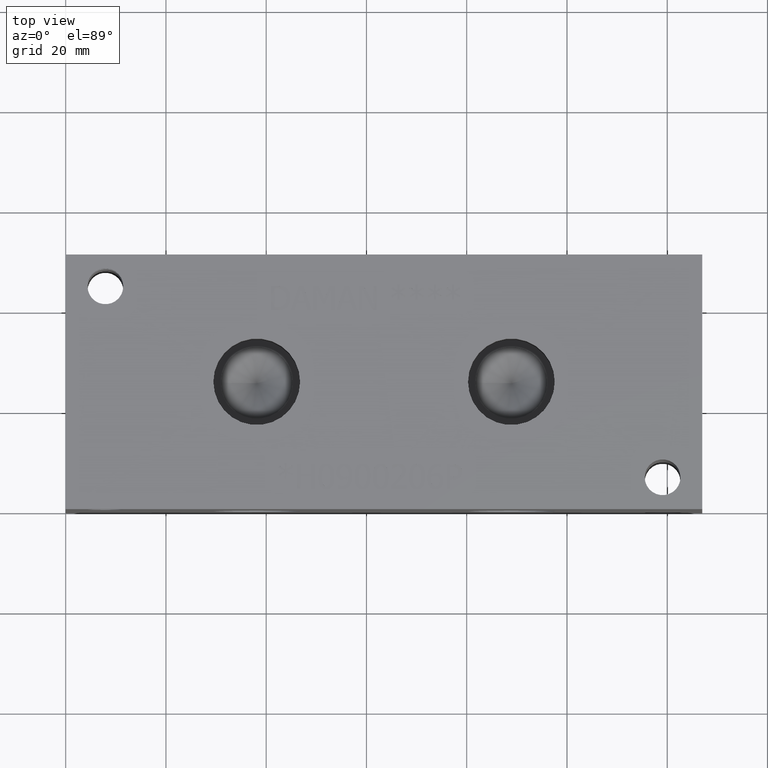
[diagram: clean part render]
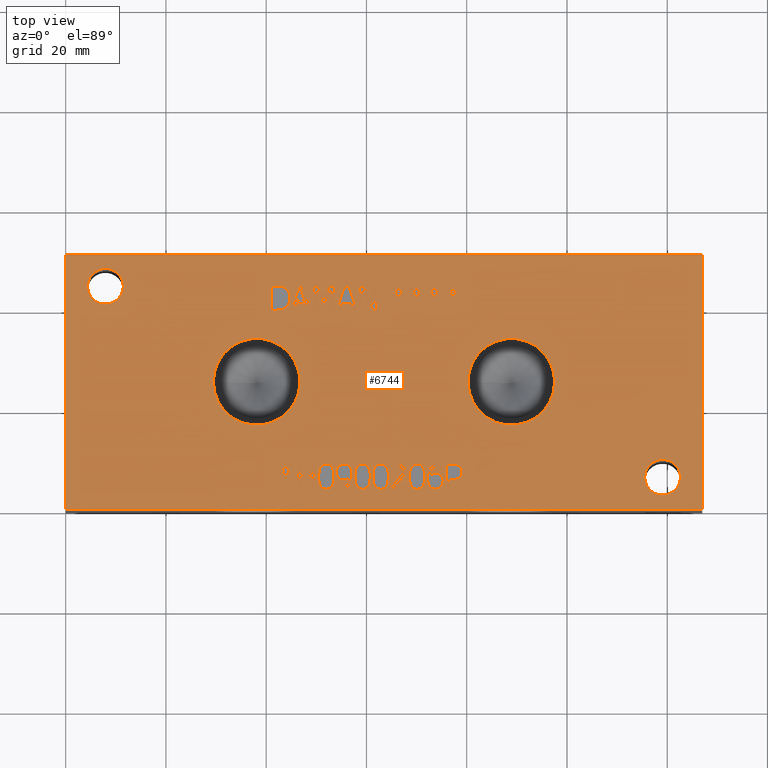
[diagram: same view with one face highlighted and labeled with its STEP entity id]
A machine part, top view. The second image highlights one B-rep face of the part: STEP entity #6744.
In plain terms, the highlighted planar face has unit normal (0, 0, 1).
Its self-contained STEP definition (entity closure, byte-faithful):
#48=CIRCLE('',#7005,3.5687);
#49=CIRCLE('',#7006,3.5687);
#50=CIRCLE('',#7007,3.5687);
#51=CIRCLE('',#7008,3.5687);
#52=CIRCLE('',#7009,8.6487);
#53=CIRCLE('',#7010,8.6487);
#54=CIRCLE('',#7011,8.6487);
#55=CIRCLE('',#7012,8.6487);
#109=FACE_BOUND('',#885,.T.);
#110=FACE_BOUND('',#886,.T.);
#111=FACE_BOUND('',#887,.T.);
#112=FACE_BOUND('',#888,.T.);
#113=FACE_BOUND('',#889,.T.);
#114=FACE_BOUND('',#890,.T.);
#115=FACE_BOUND('',#891,.T.);
#116=FACE_BOUND('',#892,.T.);
#117=FACE_BOUND('',#893,.T.);
#118=FACE_BOUND('',#894,.T.);
#119=FACE_BOUND('',#895,.T.);
#120=FACE_BOUND('',#896,.T.);
#121=FACE_BOUND('',#897,.T.);
#122=FACE_BOUND('',#898,.T.);
#123=FACE_BOUND('',#899,.T.);
#124=FACE_BOUND('',#900,.T.);
#125=FACE_BOUND('',#901,.T.);
#126=FACE_BOUND('',#902,.T.);
#127=FACE_BOUND('',#903,.T.);
#128=FACE_BOUND('',#904,.T.);
#129=FACE_BOUND('',#905,.T.);
#130=FACE_BOUND('',#906,.T.);
#131=FACE_BOUND('',#907,.T.);
#209=PLANE('',#7004);
#526=FACE_OUTER_BOUND('',#884,.T.);
#884=EDGE_LOOP('',(#5025,#5026,#5027,#5028));
#885=EDGE_LOOP('',(#5029,#5030,#5031,#5032,#5033,#5034,#5035,#5036,#5037,
#5038,#5039,#5040,#5041,#5042,#5043,#5044,#5045,#5046));
#886=EDGE_LOOP('',(#5047,#5048,#5049,#5050,#5051,#5052,#5053,#5054,#5055,
#5056,#5057,#5058,#5059,#5060,#5061,#5062,#5063,#5064));
#887=EDGE_LOOP('',(#5065,#5066,#5067,#5068,#5069,#5070,#5071,#5072,#5073,
#5074,#5075,#5076,#5077));
#888=EDGE_LOOP('',(#5078,#5079,#5080,#5081,#5082,#5083,#5084,#5085));
#889=EDGE_LOOP('',(#5086,#5087,#5088,#5089,#5090,#5091,#5092));
#890=EDGE_LOOP('',(#5093,#5094,#5095,#5096,#5097,#5098,#5099,#5100));
#891=EDGE_LOOP('',(#5101,#5102,#5103,#5104,#5105,#5106,#5107,#5108,#5109,
#5110));
#892=EDGE_LOOP('',(#5111,#5112,#5113,#5114,#5115,#5116,#5117,#5118,#5119,
#5120,#5121,#5122,#5123,#5124,#5125,#5126,#5127,#5128));
#893=EDGE_LOOP('',(#5129,#5130,#5131,#5132,#5133,#5134,#5135,#5136,#5137,
#5138,#5139,#5140,#5141,#5142,#5143,#5144,#5145,#5146));
#894=EDGE_LOOP('',(#5147,#5148));
#895=EDGE_LOOP('',(#5149,#5150));
#896=EDGE_LOOP('',(#5151,#5152));
#897=EDGE_LOOP('',(#5153,#5154));
#898=EDGE_LOOP('',(#5155,#5156,#5157,#5158,#5159,#5160,#5161,#5162,#5163,
#5164,#5165,#5166,#5167,#5168,#5169,#5170,#5171));
#899=EDGE_LOOP('',(#5172,#5173,#5174,#5175));
#900=EDGE_LOOP('',(#5176,#5177,#5178,#5179));
#901=EDGE_LOOP('',(#5180,#5181,#5182,#5183,#5184,#5185,#5186,#5187,#5188,
#5189,#5190,#5191,#5192,#5193));
#902=EDGE_LOOP('',(#5194,#5195,#5196,#5197));
#903=EDGE_LOOP('',(#5198,#5199,#5200,#5201,#5202,#5203,#5204,#5205,#5206,
#5207,#5208,#5209,#5210,#5211,#5212,#5213,#5214,#5215));
#904=EDGE_LOOP('',(#5216,#5217,#5218,#5219,#5220,#5221,#5222,#5223,#5224,
#5225,#5226,#5227));
#905=EDGE_LOOP('',(#5228,#5229,#5230,#5231));
#906=EDGE_LOOP('',(#5232,#5233,#5234,#5235,#5236,#5237,#5238,#5239,#5240,
#5241,#5242,#5243,#5244,#5245));
#907=EDGE_LOOP('',(#5246,#5247,#5248,#5249,#5250,#5251,#5252,#5253,#5254));
#1130=LINE('',#8650,#1794);
#1133=LINE('',#8656,#1797);
#1136=LINE('',#8662,#1800);
#1139=LINE('',#8668,#1803);
#1142=LINE('',#8674,#1806);
#1159=LINE('',#8947,#1823);
#1162=LINE('',#8953,#1826);
#1183=LINE('',#9320,#1847);
#1187=LINE('',#9328,#1851);
#1190=LINE('',#9334,#1854);
#1193=LINE('',#9340,#1857);
#1196=LINE('',#9346,#1860);
#1199=LINE('',#9352,#1863);
#1202=LINE('',#9358,#1866);
#1205=LINE('',#9364,#1869);
#1208=LINE('',#9370,#1872);
#1211=LINE('',#9376,#1875);
#1214=LINE('',#9382,#1878);
#1217=LINE('',#9387,#1881);
#1219=LINE('',#9393,#1883);
#1223=LINE('',#9401,#1887);
#1226=LINE('',#9407,#1890);
#1229=LINE('',#9413,#1893);
#1232=LINE('',#9419,#1896);
#1235=LINE('',#9425,#1899);
#1238=LINE('',#9431,#1902);
#1241=LINE('',#9437,#1905);
#1244=LINE('',#9443,#1908);
#1247=LINE('',#9449,#1911);
#1250=LINE('',#9455,#1914);
#1253=LINE('',#9461,#1917);
#1256=LINE('',#9467,#1920);
#1259=LINE('',#9473,#1923);
#1262=LINE('',#9479,#1926);
#1265=LINE('',#9485,#1929);
#1268=LINE('',#9491,#1932);
#1271=LINE('',#9496,#1935);
#1298=LINE('',#9961,#1962);
#1301=LINE('',#9967,#1965);
#1334=LINE('',#10563,#1998);
#1338=LINE('',#10571,#2002);
#1346=LINE('',#10672,#2010);
#1349=LINE('',#10678,#2013);
#1358=LINE('',#10798,#2022);
#1361=LINE('',#10803,#2025);
#1363=LINE('',#10809,#2027);
#1364=LINE('',#10811,#2028);
#1365=LINE('',#10813,#2029);
#1366=LINE('',#10814,#2030);
#1367=LINE('',#10817,#2031);
#1368=LINE('',#10819,#2032);
#1369=LINE('',#10821,#2033);
#1370=LINE('',#10823,#2034);
#1371=LINE('',#10825,#2035);
#1372=LINE('',#10827,#2036);
#1373=LINE('',#10829,#2037);
#1374=LINE('',#10831,#2038);
#1375=LINE('',#10833,#2039);
#1376=LINE('',#10835,#2040);
#1377=LINE('',#10837,#2041);
#1378=LINE('',#10839,#2042);
#1379=LINE('',#10841,#2043);
#1380=LINE('',#10843,#2044);
#1381=LINE('',#10845,#2045);
#1382=LINE('',#10847,#2046);
#1383=LINE('',#10849,#2047);
#1384=LINE('',#10850,#2048);
#1385=LINE('',#10853,#2049);
#1386=LINE('',#10855,#2050);
#1387=LINE('',#10857,#2051);
#1388=LINE('',#10859,#2052);
#1389=LINE('',#10861,#2053);
#1390=LINE('',#10863,#2054);
#1391=LINE('',#10865,#2055);
#1392=LINE('',#10867,#2056);
#1393=LINE('',#10869,#2057);
#1394=LINE('',#10871,#2058);
#1395=LINE('',#10873,#2059);
#1396=LINE('',#10875,#2060);
#1397=LINE('',#10877,#2061);
#1398=LINE('',#10879,#2062);
#1399=LINE('',#10881,#2063);
#1400=LINE('',#10883,#2064);
#1401=LINE('',#10885,#2065);
#1402=LINE('',#10886,#2066);
#1403=LINE('',#10889,#2067);
#1404=LINE('',#10891,#2068);
#1405=LINE('',#10893,#2069);
#1406=LINE('',#10895,#2070);
#1407=LINE('',#10897,#2071);
#1408=LINE('',#10899,#2072);
#1409=LINE('',#10901,#2073);
#1410=LINE('',#10903,#2074);
#1411=LINE('',#10905,#2075);
#1412=LINE('',#10907,#2076);
#1413=LINE('',#10909,#2077);
#1414=LINE('',#10911,#2078);
#1415=LINE('',#10912,#2079);
#1416=LINE('',#10915,#2080);
#1417=LINE('',#10917,#2081);
#1418=LINE('',#10919,#2082);
#1419=LINE('',#10921,#2083);
#1420=LINE('',#10923,#2084);
#1421=LINE('',#10925,#2085);
#1422=LINE('',#10927,#2086);
#1423=LINE('',#10928,#2087);
#1424=LINE('',#10946,#2088);
#1425=LINE('',#10948,#2089);
#1426=LINE('',#10950,#2090);
#1427=LINE('',#10957,#2091);
#1428=LINE('',#10959,#2092);
#1429=LINE('',#10961,#2093);
#1430=LINE('',#10963,#2094);
#1431=LINE('',#10965,#2095);
#1432=LINE('',#10967,#2096);
#1433=LINE('',#10969,#2097);
#1434=LINE('',#10970,#2098);
#1435=LINE('',#10973,#2099);
#1436=LINE('',#10975,#2100);
#1437=LINE('',#10977,#2101);
#1438=LINE('',#10979,#2102);
#1439=LINE('',#10981,#2103);
#1440=LINE('',#10983,#2104);
#1441=LINE('',#10985,#2105);
#1442=LINE('',#10987,#2106);
#1443=LINE('',#10989,#2107);
#1444=LINE('',#10990,#2108);
#1445=LINE('',#10993,#2109);
#1446=LINE('',#10995,#2110);
#1447=LINE('',#10997,#2111);
#1448=LINE('',#10999,#2112);
#1449=LINE('',#11001,#2113);
#1450=LINE('',#11003,#2114);
#1451=LINE('',#11005,#2115);
#1452=LINE('',#11007,#2116);
#1453=LINE('',#11009,#2117);
#1454=LINE('',#11011,#2118);
#1455=LINE('',#11013,#2119);
#1456=LINE('',#11015,#2120);
#1457=LINE('',#11017,#2121);
#1458=LINE('',#11019,#2122);
#1459=LINE('',#11021,#2123);
#1460=LINE('',#11023,#2124);
#1461=LINE('',#11025,#2125);
#1462=LINE('',#11026,#2126);
#1463=LINE('',#11029,#2127);
#1464=LINE('',#11031,#2128);
#1465=LINE('',#11033,#2129);
#1466=LINE('',#11035,#2130);
#1467=LINE('',#11037,#2131);
#1468=LINE('',#11039,#2132);
#1469=LINE('',#11041,#2133);
#1470=LINE('',#11043,#2134);
#1471=LINE('',#11045,#2135);
#1472=LINE('',#11047,#2136);
#1473=LINE('',#11049,#2137);
#1474=LINE('',#11051,#2138);
#1475=LINE('',#11053,#2139);
#1476=LINE('',#11055,#2140);
#1477=LINE('',#11057,#2141);
#1478=LINE('',#11059,#2142);
#1479=LINE('',#11061,#2143);
#1480=LINE('',#11062,#2144);
#1794=VECTOR('',#7272,10.);
#1797=VECTOR('',#7277,10.);
#1800=VECTOR('',#7282,10.);
#1803=VECTOR('',#7287,10.);
#1806=VECTOR('',#7292,10.);
#1823=VECTOR('',#7313,10.);
#1826=VECTOR('',#7318,10.);
#1847=VECTOR('',#7345,10.);
#1851=VECTOR('',#7351,10.);
#1854=VECTOR('',#7356,10.);
#1857=VECTOR('',#7361,10.);
#1860=VECTOR('',#7366,10.);
#1863=VECTOR('',#7371,10.);
#1866=VECTOR('',#7376,10.);
#1869=VECTOR('',#7381,10.);
#1872=VECTOR('',#7386,10.);
#1875=VECTOR('',#7391,10.);
#1878=VECTOR('',#7396,10.);
#1881=VECTOR('',#7401,10.);
#1883=VECTOR('',#7407,10.);
#1887=VECTOR('',#7413,10.);
#1890=VECTOR('',#7418,10.);
#1893=VECTOR('',#7423,10.);
#1896=VECTOR('',#7428,10.);
#1899=VECTOR('',#7433,10.);
#1902=VECTOR('',#7438,10.);
#1905=VECTOR('',#7443,10.);
#1908=VECTOR('',#7448,10.);
#1911=VECTOR('',#7453,10.);
#1914=VECTOR('',#7458,10.);
#1917=VECTOR('',#7463,10.);
#1920=VECTOR('',#7468,10.);
#1923=VECTOR('',#7473,10.);
#1926=VECTOR('',#7478,10.);
#1929=VECTOR('',#7483,10.);
#1932=VECTOR('',#7488,10.);
#1935=VECTOR('',#7493,10.);
#1962=VECTOR('',#7526,10.);
#1965=VECTOR('',#7531,10.);
#1998=VECTOR('',#7572,10.);
#2002=VECTOR('',#7578,10.);
#2010=VECTOR('',#7588,10.);
#2013=VECTOR('',#7593,10.);
#2022=VECTOR('',#7604,10.);
#2025=VECTOR('',#7609,10.);
#2027=VECTOR('',#7615,10.);
#2028=VECTOR('',#7616,10.);
#2029=VECTOR('',#7617,10.);
#2030=VECTOR('',#7618,10.);
#2031=VECTOR('',#7619,10.);
#2032=VECTOR('',#7620,10.);
#2033=VECTOR('',#7621,10.);
#2034=VECTOR('',#7622,10.);
#2035=VECTOR('',#7623,10.);
#2036=VECTOR('',#7624,10.);
#2037=VECTOR('',#7625,10.);
#2038=VECTOR('',#7626,10.);
#2039=VECTOR('',#7627,10.);
#2040=VECTOR('',#7628,10.);
#2041=VECTOR('',#7629,10.);
#2042=VECTOR('',#7630,10.);
#2043=VECTOR('',#7631,10.);
#2044=VECTOR('',#7632,10.);
#2045=VECTOR('',#7633,10.);
#2046=VECTOR('',#7634,10.);
#2047=VECTOR('',#7635,10.);
#2048=VECTOR('',#7636,10.);
#2049=VECTOR('',#7637,10.);
#2050=VECTOR('',#7638,10.);
#2051=VECTOR('',#7639,10.);
#2052=VECTOR('',#7640,10.);
#2053=VECTOR('',#7641,10.);
#2054=VECTOR('',#7642,10.);
#2055=VECTOR('',#7643,10.);
#2056=VECTOR('',#7644,10.);
#2057=VECTOR('',#7645,10.);
#2058=VECTOR('',#7646,10.);
#2059=VECTOR('',#7647,10.);
#2060=VECTOR('',#7648,10.);
#2061=VECTOR('',#7649,10.);
#2062=VECTOR('',#7650,10.);
#2063=VECTOR('',#7651,10.);
#2064=VECTOR('',#7652,10.);
#2065=VECTOR('',#7653,10.);
#2066=VECTOR('',#7654,10.);
#2067=VECTOR('',#7655,10.);
#2068=VECTOR('',#7656,10.);
#2069=VECTOR('',#7657,10.);
#2070=VECTOR('',#7658,10.);
#2071=VECTOR('',#7659,10.);
#2072=VECTOR('',#7660,10.);
#2073=VECTOR('',#7661,10.);
#2074=VECTOR('',#7662,10.);
#2075=VECTOR('',#7663,10.);
#2076=VECTOR('',#7664,10.);
#2077=VECTOR('',#7665,10.);
#2078=VECTOR('',#7666,10.);
#2079=VECTOR('',#7667,10.);
#2080=VECTOR('',#7668,10.);
#2081=VECTOR('',#7669,10.);
#2082=VECTOR('',#7670,10.);
#2083=VECTOR('',#7671,10.);
#2084=VECTOR('',#7672,10.);
#2085=VECTOR('',#7673,10.);
#2086=VECTOR('',#7674,10.);
#2087=VECTOR('',#7675,10.);
#2088=VECTOR('',#7676,10.);
#2089=VECTOR('',#7677,10.);
#2090=VECTOR('',#7678,10.);
#2091=VECTOR('',#7679,10.);
#2092=VECTOR('',#7680,10.);
#2093=VECTOR('',#7681,10.);
#2094=VECTOR('',#7682,10.);
#2095=VECTOR('',#7683,10.);
#2096=VECTOR('',#7684,10.);
#2097=VECTOR('',#7685,10.);
#2098=VECTOR('',#7686,10.);
#2099=VECTOR('',#7687,10.);
#2100=VECTOR('',#7688,10.);
#2101=VECTOR('',#7689,10.);
#2102=VECTOR('',#7690,10.);
#2103=VECTOR('',#7691,10.);
#2104=VECTOR('',#7692,10.);
#2105=VECTOR('',#7693,10.);
#2106=VECTOR('',#7694,10.);
#2107=VECTOR('',#7695,10.);
#2108=VECTOR('',#7696,10.);
#2109=VECTOR('',#7697,10.);
#2110=VECTOR('',#7698,10.);
#2111=VECTOR('',#7699,10.);
#2112=VECTOR('',#7700,10.);
#2113=VECTOR('',#7701,10.);
#2114=VECTOR('',#7702,10.);
#2115=VECTOR('',#7703,10.);
#2116=VECTOR('',#7704,10.);
#2117=VECTOR('',#7705,10.);
#2118=VECTOR('',#7706,10.);
#2119=VECTOR('',#7707,10.);
#2120=VECTOR('',#7708,10.);
#2121=VECTOR('',#7709,10.);
#2122=VECTOR('',#7710,10.);
#2123=VECTOR('',#7711,10.);
#2124=VECTOR('',#7712,10.);
#2125=VECTOR('',#7713,10.);
#2126=VECTOR('',#7714,10.);
#2127=VECTOR('',#7715,10.);
#2128=VECTOR('',#7716,10.);
#2129=VECTOR('',#7717,10.);
#2130=VECTOR('',#7718,10.);
#2131=VECTOR('',#7719,10.);
#2132=VECTOR('',#7720,10.);
#2133=VECTOR('',#7721,10.);
#2134=VECTOR('',#7722,10.);
#2135=VECTOR('',#7723,10.);
#2136=VECTOR('',#7724,10.);
#2137=VECTOR('',#7725,10.);
#2138=VECTOR('',#7726,10.);
#2139=VECTOR('',#7727,10.);
#2140=VECTOR('',#7728,10.);
#2141=VECTOR('',#7729,10.);
#2142=VECTOR('',#7730,10.);
#2143=VECTOR('',#7731,10.);
#2144=VECTOR('',#7732,10.);
#2450=B_SPLINE_CURVE_WITH_KNOTS('',2,(#8617,#8618,#8619,#8620),
 .UNSPECIFIED.,.F.,.F.,(3,1,3),(0.,1.,2.),.UNSPECIFIED.);
#2452=B_SPLINE_CURVE_WITH_KNOTS('',2,(#8638,#8639,#8640,#8641),
 .UNSPECIFIED.,.F.,.F.,(3,1,3),(0.,1.,2.),.UNSPECIFIED.);
#2454=B_SPLINE_CURVE_WITH_KNOTS('',2,(#8687,#8688,#8689,#8690),
 .UNSPECIFIED.,.F.,.F.,(3,1,3),(0.,1.,2.),.UNSPECIFIED.);
#2456=B_SPLINE_CURVE_WITH_KNOTS('',2,(#8705,#8706,#8707,#8708),
 .UNSPECIFIED.,.F.,.F.,(3,1,3),(0.,1.,2.),.UNSPECIFIED.);
#2472=B_SPLINE_CURVE_WITH_KNOTS('',2,(#8857,#8858,#8859,#8860),
 .UNSPECIFIED.,.F.,.F.,(3,1,3),(0.,1.,2.),.UNSPECIFIED.);
#2474=B_SPLINE_CURVE_WITH_KNOTS('',2,(#8878,#8879,#8880,#8881),
 .UNSPECIFIED.,.F.,.F.,(3,1,3),(0.,1.,2.),.UNSPECIFIED.);
#2476=B_SPLINE_CURVE_WITH_KNOTS('',2,(#8897,#8898,#8899,#8900),
 .UNSPECIFIED.,.F.,.F.,(3,1,3),(0.,1.,2.),.UNSPECIFIED.);
#2478=B_SPLINE_CURVE_WITH_KNOTS('',2,(#8916,#8917,#8918,#8919),
 .UNSPECIFIED.,.F.,.F.,(3,1,3),(0.,1.,2.),.UNSPECIFIED.);
#2480=B_SPLINE_CURVE_WITH_KNOTS('',2,(#8935,#8936,#8937,#8938),
 .UNSPECIFIED.,.F.,.F.,(3,1,3),(0.,1.,2.),.UNSPECIFIED.);
#2482=B_SPLINE_CURVE_WITH_KNOTS('',2,(#8966,#8967,#8968,#8969),
 .UNSPECIFIED.,.F.,.F.,(3,1,3),(0.,1.,2.),.UNSPECIFIED.);
#2484=B_SPLINE_CURVE_WITH_KNOTS('',2,(#8985,#8986,#8987,#8988),
 .UNSPECIFIED.,.F.,.F.,(3,1,3),(0.,1.,2.),.UNSPECIFIED.);
#2486=B_SPLINE_CURVE_WITH_KNOTS('',2,(#9004,#9005,#9006,#9007),
 .UNSPECIFIED.,.F.,.F.,(3,1,3),(0.,1.,2.),.UNSPECIFIED.);
#2488=B_SPLINE_CURVE_WITH_KNOTS('',2,(#9023,#9024,#9025,#9026),
 .UNSPECIFIED.,.F.,.F.,(3,1,3),(0.,1.,2.),.UNSPECIFIED.);
#2490=B_SPLINE_CURVE_WITH_KNOTS('',2,(#9042,#9043,#9044,#9045),
 .UNSPECIFIED.,.F.,.F.,(3,1,3),(0.,1.,2.),.UNSPECIFIED.);
#2492=B_SPLINE_CURVE_WITH_KNOTS('',2,(#9061,#9062,#9063,#9064),
 .UNSPECIFIED.,.F.,.F.,(3,1,3),(0.,1.,2.),.UNSPECIFIED.);
#2494=B_SPLINE_CURVE_WITH_KNOTS('',2,(#9079,#9080,#9081,#9082),
 .UNSPECIFIED.,.F.,.F.,(3,1,3),(0.,1.,2.),.UNSPECIFIED.);
#2512=B_SPLINE_CURVE_WITH_KNOTS('',2,(#9250,#9251,#9252,#9253),
 .UNSPECIFIED.,.F.,.F.,(3,1,3),(0.,1.,2.),.UNSPECIFIED.);
#2514=B_SPLINE_CURVE_WITH_KNOTS('',2,(#9271,#9272,#9273,#9274),
 .UNSPECIFIED.,.F.,.F.,(3,1,3),(0.,1.,2.),.UNSPECIFIED.);
#2516=B_SPLINE_CURVE_WITH_KNOTS('',2,(#9290,#9291,#9292,#9293),
 .UNSPECIFIED.,.F.,.F.,(3,1,3),(0.,1.,2.),.UNSPECIFIED.);
#2518=B_SPLINE_CURVE_WITH_KNOTS('',2,(#9308,#9309,#9310,#9311),
 .UNSPECIFIED.,.F.,.F.,(3,1,3),(0.,1.,2.),.UNSPECIFIED.);
#2536=B_SPLINE_CURVE_WITH_KNOTS('',2,(#9661,#9662,#9663,#9664),
 .UNSPECIFIED.,.F.,.F.,(3,1,3),(0.,1.,2.),.UNSPECIFIED.);
#2538=B_SPLINE_CURVE_WITH_KNOTS('',2,(#9682,#9683,#9684,#9685),
 .UNSPECIFIED.,.F.,.F.,(3,1,3),(0.,1.,2.),.UNSPECIFIED.);
#2540=B_SPLINE_CURVE_WITH_KNOTS('',2,(#9701,#9702,#9703,#9704),
 .UNSPECIFIED.,.F.,.F.,(3,1,3),(0.,1.,2.),.UNSPECIFIED.);
#2542=B_SPLINE_CURVE_WITH_KNOTS('',2,(#9719,#9720,#9721,#9722),
 .UNSPECIFIED.,.F.,.F.,(3,1,3),(0.,1.,2.),.UNSPECIFIED.);
#2558=B_SPLINE_CURVE_WITH_KNOTS('',2,(#9871,#9872,#9873,#9874),
 .UNSPECIFIED.,.F.,.F.,(3,1,3),(0.,1.,2.),.UNSPECIFIED.);
#2560=B_SPLINE_CURVE_WITH_KNOTS('',2,(#9892,#9893,#9894,#9895),
 .UNSPECIFIED.,.F.,.F.,(3,1,3),(0.,1.,2.),.UNSPECIFIED.);
#2562=B_SPLINE_CURVE_WITH_KNOTS('',2,(#9911,#9912,#9913,#9914),
 .UNSPECIFIED.,.F.,.F.,(3,1,3),(0.,1.,2.),.UNSPECIFIED.);
#2564=B_SPLINE_CURVE_WITH_KNOTS('',2,(#9930,#9931,#9932,#9933),
 .UNSPECIFIED.,.F.,.F.,(3,1,3),(0.,1.,2.),.UNSPECIFIED.);
#2566=B_SPLINE_CURVE_WITH_KNOTS('',2,(#9949,#9950,#9951,#9952),
 .UNSPECIFIED.,.F.,.F.,(3,1,3),(0.,1.,2.),.UNSPECIFIED.);
#2568=B_SPLINE_CURVE_WITH_KNOTS('',2,(#9980,#9981,#9982,#9983),
 .UNSPECIFIED.,.F.,.F.,(3,1,3),(0.,1.,2.),.UNSPECIFIED.);
#2570=B_SPLINE_CURVE_WITH_KNOTS('',2,(#9999,#10000,#10001,#10002),
 .UNSPECIFIED.,.F.,.F.,(3,1,3),(0.,1.,2.),.UNSPECIFIED.);
#2572=B_SPLINE_CURVE_WITH_KNOTS('',2,(#10018,#10019,#10020,#10021),
 .UNSPECIFIED.,.F.,.F.,(3,1,3),(0.,1.,2.),.UNSPECIFIED.);
#2574=B_SPLINE_CURVE_WITH_KNOTS('',2,(#10037,#10038,#10039,#10040),
 .UNSPECIFIED.,.F.,.F.,(3,1,3),(0.,1.,2.),.UNSPECIFIED.);
#2576=B_SPLINE_CURVE_WITH_KNOTS('',2,(#10056,#10057,#10058,#10059),
 .UNSPECIFIED.,.F.,.F.,(3,1,3),(0.,1.,2.),.UNSPECIFIED.);
#2578=B_SPLINE_CURVE_WITH_KNOTS('',2,(#10075,#10076,#10077,#10078),
 .UNSPECIFIED.,.F.,.F.,(3,1,3),(0.,1.,2.),.UNSPECIFIED.);
#2580=B_SPLINE_CURVE_WITH_KNOTS('',2,(#10093,#10094,#10095,#10096),
 .UNSPECIFIED.,.F.,.F.,(3,1,3),(0.,1.,2.),.UNSPECIFIED.);
#2598=B_SPLINE_CURVE_WITH_KNOTS('',2,(#10264,#10265,#10266,#10267),
 .UNSPECIFIED.,.F.,.F.,(3,1,3),(0.,1.,2.),.UNSPECIFIED.);
#2600=B_SPLINE_CURVE_WITH_KNOTS('',2,(#10285,#10286,#10287,#10288),
 .UNSPECIFIED.,.F.,.F.,(3,1,3),(0.,1.,2.),.UNSPECIFIED.);
#2602=B_SPLINE_CURVE_WITH_KNOTS('',2,(#10304,#10305,#10306,#10307),
 .UNSPECIFIED.,.F.,.F.,(3,1,3),(0.,1.,2.),.UNSPECIFIED.);
#2604=B_SPLINE_CURVE_WITH_KNOTS('',2,(#10322,#10323,#10324,#10325),
 .UNSPECIFIED.,.F.,.F.,(3,1,3),(0.,1.,2.),.UNSPECIFIED.);
#2622=B_SPLINE_CURVE_WITH_KNOTS('',2,(#10493,#10494,#10495,#10496),
 .UNSPECIFIED.,.F.,.F.,(3,1,3),(0.,1.,2.),.UNSPECIFIED.);
#2624=B_SPLINE_CURVE_WITH_KNOTS('',2,(#10514,#10515,#10516,#10517),
 .UNSPECIFIED.,.F.,.F.,(3,1,3),(0.,1.,2.),.UNSPECIFIED.);
#2626=B_SPLINE_CURVE_WITH_KNOTS('',2,(#10533,#10534,#10535,#10536),
 .UNSPECIFIED.,.F.,.F.,(3,1,3),(0.,1.,2.),.UNSPECIFIED.);
#2628=B_SPLINE_CURVE_WITH_KNOTS('',2,(#10551,#10552,#10553,#10554),
 .UNSPECIFIED.,.F.,.F.,(3,1,3),(0.,1.,2.),.UNSPECIFIED.);
#2630=B_SPLINE_CURVE_WITH_KNOTS('',2,(#10584,#10585,#10586,#10587),
 .UNSPECIFIED.,.F.,.F.,(3,1,3),(0.,1.,2.),.UNSPECIFIED.);
#2632=B_SPLINE_CURVE_WITH_KNOTS('',2,(#10603,#10604,#10605,#10606),
 .UNSPECIFIED.,.F.,.F.,(3,1,3),(0.,1.,2.),.UNSPECIFIED.);
#2634=B_SPLINE_CURVE_WITH_KNOTS('',2,(#10622,#10623,#10624,#10625),
 .UNSPECIFIED.,.F.,.F.,(3,1,3),(0.,1.,2.),.UNSPECIFIED.);
#2636=B_SPLINE_CURVE_WITH_KNOTS('',2,(#10641,#10642,#10643,#10644),
 .UNSPECIFIED.,.F.,.F.,(3,1,3),(0.,1.,2.),.UNSPECIFIED.);
#2638=B_SPLINE_CURVE_WITH_KNOTS('',2,(#10660,#10661,#10662,#10663),
 .UNSPECIFIED.,.F.,.F.,(3,1,3),(0.,1.,2.),.UNSPECIFIED.);
#2640=B_SPLINE_CURVE_WITH_KNOTS('',2,(#10691,#10692,#10693,#10694),
 .UNSPECIFIED.,.F.,.F.,(3,1,3),(0.,1.,2.),.UNSPECIFIED.);
#2642=B_SPLINE_CURVE_WITH_KNOTS('',2,(#10710,#10711,#10712,#10713),
 .UNSPECIFIED.,.F.,.F.,(3,1,3),(0.,1.,2.),.UNSPECIFIED.);
#2644=B_SPLINE_CURVE_WITH_KNOTS('',2,(#10729,#10730,#10731,#10732),
 .UNSPECIFIED.,.F.,.F.,(3,1,3),(0.,1.,2.),.UNSPECIFIED.);
#2646=B_SPLINE_CURVE_WITH_KNOTS('',2,(#10748,#10749,#10750,#10751),
 .UNSPECIFIED.,.F.,.F.,(3,1,3),(0.,1.,2.),.UNSPECIFIED.);
#2648=B_SPLINE_CURVE_WITH_KNOTS('',2,(#10767,#10768,#10769,#10770),
 .UNSPECIFIED.,.F.,.F.,(3,1,3),(0.,1.,2.),.UNSPECIFIED.);
#2650=B_SPLINE_CURVE_WITH_KNOTS('',2,(#10786,#10787,#10788,#10789),
 .UNSPECIFIED.,.F.,.F.,(3,1,3),(0.,1.,2.),.UNSPECIFIED.);
#2652=B_SPLINE_CURVE_WITH_KNOTS('',2,(#10931,#10932,#10933,#10934),
 .UNSPECIFIED.,.F.,.F.,(3,1,3),(0.,1.,2.),.UNSPECIFIED.);
#2653=B_SPLINE_CURVE_WITH_KNOTS('',2,(#10936,#10937,#10938,#10939),
 .UNSPECIFIED.,.F.,.F.,(3,1,3),(0.,1.,2.),.UNSPECIFIED.);
#2654=B_SPLINE_CURVE_WITH_KNOTS('',2,(#10941,#10942,#10943,#10944),
 .UNSPECIFIED.,.F.,.F.,(3,1,3),(0.,1.,2.),.UNSPECIFIED.);
#2655=B_SPLINE_CURVE_WITH_KNOTS('',2,(#10951,#10952,#10953,#10954),
 .UNSPECIFIED.,.F.,.F.,(3,1,3),(0.,1.,2.),.UNSPECIFIED.);
#2682=VERTEX_POINT('',#8615);
#2683=VERTEX_POINT('',#8616);
#2686=VERTEX_POINT('',#8637);
#2688=VERTEX_POINT('',#8649);
#2690=VERTEX_POINT('',#8655);
#2692=VERTEX_POINT('',#8661);
#2694=VERTEX_POINT('',#8667);
#2696=VERTEX_POINT('',#8673);
#2698=VERTEX_POINT('',#8686);
#2714=VERTEX_POINT('',#8855);
#2715=VERTEX_POINT('',#8856);
#2718=VERTEX_POINT('',#8877);
#2720=VERTEX_POINT('',#8896);
#2722=VERTEX_POINT('',#8915);
#2724=VERTEX_POINT('',#8934);
#2726=VERTEX_POINT('',#8946);
#2728=VERTEX_POINT('',#8952);
#2730=VERTEX_POINT('',#8965);
#2732=VERTEX_POINT('',#8984);
#2734=VERTEX_POINT('',#9003);
#2736=VERTEX_POINT('',#9022);
#2738=VERTEX_POINT('',#9041);
#2740=VERTEX_POINT('',#9060);
#2758=VERTEX_POINT('',#9248);
#2759=VERTEX_POINT('',#9249);
#2762=VERTEX_POINT('',#9270);
#2764=VERTEX_POINT('',#9289);
#2766=VERTEX_POINT('',#9318);
#2767=VERTEX_POINT('',#9319);
#2770=VERTEX_POINT('',#9327);
#2772=VERTEX_POINT('',#9333);
#2774=VERTEX_POINT('',#9339);
#2776=VERTEX_POINT('',#9345);
#2778=VERTEX_POINT('',#9351);
#2780=VERTEX_POINT('',#9357);
#2782=VERTEX_POINT('',#9363);
#2784=VERTEX_POINT('',#9369);
#2786=VERTEX_POINT('',#9375);
#2788=VERTEX_POINT('',#9381);
#2790=VERTEX_POINT('',#9391);
#2791=VERTEX_POINT('',#9392);
#2794=VERTEX_POINT('',#9400);
#2796=VERTEX_POINT('',#9406);
#2798=VERTEX_POINT('',#9412);
#2800=VERTEX_POINT('',#9418);
#2802=VERTEX_POINT('',#9424);
#2804=VERTEX_POINT('',#9430);
#2806=VERTEX_POINT('',#9436);
#2808=VERTEX_POINT('',#9442);
#2810=VERTEX_POINT('',#9448);
#2812=VERTEX_POINT('',#9454);
#2814=VERTEX_POINT('',#9460);
#2816=VERTEX_POINT('',#9466);
#2818=VERTEX_POINT('',#9472);
#2820=VERTEX_POINT('',#9478);
#2822=VERTEX_POINT('',#9484);
#2824=VERTEX_POINT('',#9490);
#2842=VERTEX_POINT('',#9659);
#2843=VERTEX_POINT('',#9660);
#2846=VERTEX_POINT('',#9681);
#2848=VERTEX_POINT('',#9700);
#2864=VERTEX_POINT('',#9869);
#2865=VERTEX_POINT('',#9870);
#2868=VERTEX_POINT('',#9891);
#2870=VERTEX_POINT('',#9910);
#2872=VERTEX_POINT('',#9929);
#2874=VERTEX_POINT('',#9948);
#2876=VERTEX_POINT('',#9960);
#2878=VERTEX_POINT('',#9966);
#2880=VERTEX_POINT('',#9979);
#2882=VERTEX_POINT('',#9998);
#2884=VERTEX_POINT('',#10017);
#2886=VERTEX_POINT('',#10036);
#2888=VERTEX_POINT('',#10055);
#2890=VERTEX_POINT('',#10074);
#2908=VERTEX_POINT('',#10262);
#2909=VERTEX_POINT('',#10263);
#2912=VERTEX_POINT('',#10284);
#2914=VERTEX_POINT('',#10303);
#2932=VERTEX_POINT('',#10491);
#2933=VERTEX_POINT('',#10492);
#2936=VERTEX_POINT('',#10513);
#2938=VERTEX_POINT('',#10532);
#2940=VERTEX_POINT('',#10561);
#2941=VERTEX_POINT('',#10562);
#2944=VERTEX_POINT('',#10570);
#2946=VERTEX_POINT('',#10583);
#2948=VERTEX_POINT('',#10602);
#2950=VERTEX_POINT('',#10621);
#2952=VERTEX_POINT('',#10640);
#2954=VERTEX_POINT('',#10659);
#2956=VERTEX_POINT('',#10671);
#2958=VERTEX_POINT('',#10677);
#2960=VERTEX_POINT('',#10690);
#2962=VERTEX_POINT('',#10709);
#2964=VERTEX_POINT('',#10728);
#2966=VERTEX_POINT('',#10747);
#2968=VERTEX_POINT('',#10766);
#2970=VERTEX_POINT('',#10785);
#2972=VERTEX_POINT('',#10797);
#2974=VERTEX_POINT('',#10807);
#2975=VERTEX_POINT('',#10808);
#2976=VERTEX_POINT('',#10810);
#2977=VERTEX_POINT('',#10812);
#2978=VERTEX_POINT('',#10815);
#2979=VERTEX_POINT('',#10816);
#2980=VERTEX_POINT('',#10818);
#2981=VERTEX_POINT('',#10820);
#2982=VERTEX_POINT('',#10822);
#2983=VERTEX_POINT('',#10824);
#2984=VERTEX_POINT('',#10826);
#2985=VERTEX_POINT('',#10828);
#2986=VERTEX_POINT('',#10830);
#2987=VERTEX_POINT('',#10832);
#2988=VERTEX_POINT('',#10834);
#2989=VERTEX_POINT('',#10836);
#2990=VERTEX_POINT('',#10838);
#2991=VERTEX_POINT('',#10840);
#2992=VERTEX_POINT('',#10842);
#2993=VERTEX_POINT('',#10844);
#2994=VERTEX_POINT('',#10846);
#2995=VERTEX_POINT('',#10848);
#2996=VERTEX_POINT('',#10851);
#2997=VERTEX_POINT('',#10852);
#2998=VERTEX_POINT('',#10854);
#2999=VERTEX_POINT('',#10856);
#3000=VERTEX_POINT('',#10858);
#3001=VERTEX_POINT('',#10860);
#3002=VERTEX_POINT('',#10862);
#3003=VERTEX_POINT('',#10864);
#3004=VERTEX_POINT('',#10866);
#3005=VERTEX_POINT('',#10868);
#3006=VERTEX_POINT('',#10870);
#3007=VERTEX_POINT('',#10872);
#3008=VERTEX_POINT('',#10874);
#3009=VERTEX_POINT('',#10876);
#3010=VERTEX_POINT('',#10878);
#3011=VERTEX_POINT('',#10880);
#3012=VERTEX_POINT('',#10882);
#3013=VERTEX_POINT('',#10884);
#3014=VERTEX_POINT('',#10887);
#3015=VERTEX_POINT('',#10888);
#3016=VERTEX_POINT('',#10890);
#3017=VERTEX_POINT('',#10892);
#3018=VERTEX_POINT('',#10894);
#3019=VERTEX_POINT('',#10896);
#3020=VERTEX_POINT('',#10898);
#3021=VERTEX_POINT('',#10900);
#3022=VERTEX_POINT('',#10902);
#3023=VERTEX_POINT('',#10904);
#3024=VERTEX_POINT('',#10906);
#3025=VERTEX_POINT('',#10908);
#3026=VERTEX_POINT('',#10910);
#3027=VERTEX_POINT('',#10913);
#3028=VERTEX_POINT('',#10914);
#3029=VERTEX_POINT('',#10916);
#3030=VERTEX_POINT('',#10918);
#3031=VERTEX_POINT('',#10920);
#3032=VERTEX_POINT('',#10922);
#3033=VERTEX_POINT('',#10924);
#3034=VERTEX_POINT('',#10926);
#3035=VERTEX_POINT('',#10929);
#3036=VERTEX_POINT('',#10930);
#3037=VERTEX_POINT('',#10935);
#3038=VERTEX_POINT('',#10940);
#3039=VERTEX_POINT('',#10945);
#3040=VERTEX_POINT('',#10947);
#3041=VERTEX_POINT('',#10949);
#3042=VERTEX_POINT('',#10955);
#3043=VERTEX_POINT('',#10956);
#3044=VERTEX_POINT('',#10958);
#3045=VERTEX_POINT('',#10960);
#3046=VERTEX_POINT('',#10962);
#3047=VERTEX_POINT('',#10964);
#3048=VERTEX_POINT('',#10966);
#3049=VERTEX_POINT('',#10968);
#3050=VERTEX_POINT('',#10971);
#3051=VERTEX_POINT('',#10972);
#3052=VERTEX_POINT('',#10974);
#3053=VERTEX_POINT('',#10976);
#3054=VERTEX_POINT('',#10978);
#3055=VERTEX_POINT('',#10980);
#3056=VERTEX_POINT('',#10982);
#3057=VERTEX_POINT('',#10984);
#3058=VERTEX_POINT('',#10986);
#3059=VERTEX_POINT('',#10988);
#3060=VERTEX_POINT('',#10991);
#3061=VERTEX_POINT('',#10992);
#3062=VERTEX_POINT('',#10994);
#3063=VERTEX_POINT('',#10996);
#3064=VERTEX_POINT('',#10998);
#3065=VERTEX_POINT('',#11000);
#3066=VERTEX_POINT('',#11002);
#3067=VERTEX_POINT('',#11004);
#3068=VERTEX_POINT('',#11006);
#3069=VERTEX_POINT('',#11008);
#3070=VERTEX_POINT('',#11010);
#3071=VERTEX_POINT('',#11012);
#3072=VERTEX_POINT('',#11014);
#3073=VERTEX_POINT('',#11016);
#3074=VERTEX_POINT('',#11018);
#3075=VERTEX_POINT('',#11020);
#3076=VERTEX_POINT('',#11022);
#3077=VERTEX_POINT('',#11024);
#3078=VERTEX_POINT('',#11027);
#3079=VERTEX_POINT('',#11028);
#3080=VERTEX_POINT('',#11030);
#3081=VERTEX_POINT('',#11032);
#3082=VERTEX_POINT('',#11034);
#3083=VERTEX_POINT('',#11036);
#3084=VERTEX_POINT('',#11038);
#3085=VERTEX_POINT('',#11040);
#3086=VERTEX_POINT('',#11042);
#3087=VERTEX_POINT('',#11044);
#3088=VERTEX_POINT('',#11046);
#3089=VERTEX_POINT('',#11048);
#3090=VERTEX_POINT('',#11050);
#3091=VERTEX_POINT('',#11052);
#3092=VERTEX_POINT('',#11054);
#3093=VERTEX_POINT('',#11056);
#3094=VERTEX_POINT('',#11058);
#3095=VERTEX_POINT('',#11060);
#3096=VERTEX_POINT('',#11063);
#3097=VERTEX_POINT('',#11064);
#3098=VERTEX_POINT('',#11067);
#3099=VERTEX_POINT('',#11068);
#3100=VERTEX_POINT('',#11071);
#3101=VERTEX_POINT('',#11072);
#3102=VERTEX_POINT('',#11075);
#3103=VERTEX_POINT('',#11076);
#3329=EDGE_CURVE('',#2682,#2683,#2450,.T.);
#3333=EDGE_CURVE('',#2686,#2682,#2452,.T.);
#3336=EDGE_CURVE('',#2688,#2686,#1130,.T.);
#3339=EDGE_CURVE('',#2690,#2688,#1133,.T.);
#3342=EDGE_CURVE('',#2692,#2690,#1136,.T.);
#3345=EDGE_CURVE('',#2694,#2692,#1139,.T.);
#3348=EDGE_CURVE('',#2696,#2694,#1142,.T.);
#3351=EDGE_CURVE('',#2698,#2696,#2454,.T.);
#3354=EDGE_CURVE('',#2683,#2698,#2456,.T.);
#3377=EDGE_CURVE('',#2714,#2715,#2472,.T.);
#3381=EDGE_CURVE('',#2718,#2714,#2474,.T.);
#3384=EDGE_CURVE('',#2720,#2718,#2476,.T.);
#3387=EDGE_CURVE('',#2722,#2720,#2478,.T.);
#3390=EDGE_CURVE('',#2724,#2722,#2480,.T.);
#3393=EDGE_CURVE('',#2726,#2724,#1159,.T.);
#3396=EDGE_CURVE('',#2728,#2726,#1162,.T.);
#3399=EDGE_CURVE('',#2730,#2728,#2482,.T.);
#3402=EDGE_CURVE('',#2732,#2730,#2484,.T.);
#3405=EDGE_CURVE('',#2734,#2732,#2486,.T.);
#3408=EDGE_CURVE('',#2736,#2734,#2488,.T.);
#3411=EDGE_CURVE('',#2738,#2736,#2490,.T.);
#3414=EDGE_CURVE('',#2740,#2738,#2492,.T.);
#3417=EDGE_CURVE('',#2715,#2740,#2494,.T.);
#3443=EDGE_CURVE('',#2758,#2759,#2512,.T.);
#3447=EDGE_CURVE('',#2762,#2758,#2514,.T.);
#3450=EDGE_CURVE('',#2764,#2762,#2516,.T.);
#3453=EDGE_CURVE('',#2759,#2764,#2518,.T.);
#3455=EDGE_CURVE('',#2766,#2767,#1183,.T.);
#3459=EDGE_CURVE('',#2770,#2766,#1187,.T.);
#3462=EDGE_CURVE('',#2772,#2770,#1190,.T.);
#3465=EDGE_CURVE('',#2774,#2772,#1193,.T.);
#3468=EDGE_CURVE('',#2776,#2774,#1196,.T.);
#3471=EDGE_CURVE('',#2778,#2776,#1199,.T.);
#3474=EDGE_CURVE('',#2780,#2778,#1202,.T.);
#3477=EDGE_CURVE('',#2782,#2780,#1205,.T.);
#3480=EDGE_CURVE('',#2784,#2782,#1208,.T.);
#3483=EDGE_CURVE('',#2786,#2784,#1211,.T.);
#3486=EDGE_CURVE('',#2788,#2786,#1214,.T.);
#3489=EDGE_CURVE('',#2767,#2788,#1217,.T.);
#3491=EDGE_CURVE('',#2790,#2791,#1219,.T.);
#3495=EDGE_CURVE('',#2794,#2790,#1223,.T.);
#3498=EDGE_CURVE('',#2796,#2794,#1226,.T.);
#3501=EDGE_CURVE('',#2798,#2796,#1229,.T.);
#3504=EDGE_CURVE('',#2800,#2798,#1232,.T.);
#3507=EDGE_CURVE('',#2802,#2800,#1235,.T.);
#3510=EDGE_CURVE('',#2804,#2802,#1238,.T.);
#3513=EDGE_CURVE('',#2806,#2804,#1241,.T.);
#3516=EDGE_CURVE('',#2808,#2806,#1244,.T.);
#3519=EDGE_CURVE('',#2810,#2808,#1247,.T.);
#3522=EDGE_CURVE('',#2812,#2810,#1250,.T.);
#3525=EDGE_CURVE('',#2814,#2812,#1253,.T.);
#3528=EDGE_CURVE('',#2816,#2814,#1256,.T.);
#3531=EDGE_CURVE('',#2818,#2816,#1259,.T.);
#3534=EDGE_CURVE('',#2820,#2818,#1262,.T.);
#3537=EDGE_CURVE('',#2822,#2820,#1265,.T.);
#3540=EDGE_CURVE('',#2824,#2822,#1268,.T.);
#3543=EDGE_CURVE('',#2791,#2824,#1271,.T.);
#3569=EDGE_CURVE('',#2842,#2843,#2536,.T.);
#3573=EDGE_CURVE('',#2846,#2842,#2538,.T.);
#3576=EDGE_CURVE('',#2848,#2846,#2540,.T.);
#3579=EDGE_CURVE('',#2843,#2848,#2542,.T.);
#3602=EDGE_CURVE('',#2864,#2865,#2558,.T.);
#3606=EDGE_CURVE('',#2868,#2864,#2560,.T.);
#3609=EDGE_CURVE('',#2870,#2868,#2562,.T.);
#3612=EDGE_CURVE('',#2872,#2870,#2564,.T.);
#3615=EDGE_CURVE('',#2874,#2872,#2566,.T.);
#3618=EDGE_CURVE('',#2876,#2874,#1298,.T.);
#3621=EDGE_CURVE('',#2878,#2876,#1301,.T.);
#3624=EDGE_CURVE('',#2880,#2878,#2568,.T.);
#3627=EDGE_CURVE('',#2882,#2880,#2570,.T.);
#3630=EDGE_CURVE('',#2884,#2882,#2572,.T.);
#3633=EDGE_CURVE('',#2886,#2884,#2574,.T.);
#3636=EDGE_CURVE('',#2888,#2886,#2576,.T.);
#3639=EDGE_CURVE('',#2890,#2888,#2578,.T.);
#3642=EDGE_CURVE('',#2865,#2890,#2580,.T.);
#3668=EDGE_CURVE('',#2908,#2909,#2598,.T.);
#3672=EDGE_CURVE('',#2912,#2908,#2600,.T.);
#3675=EDGE_CURVE('',#2914,#2912,#2602,.T.);
#3678=EDGE_CURVE('',#2909,#2914,#2604,.T.);
#3704=EDGE_CURVE('',#2932,#2933,#2622,.T.);
#3708=EDGE_CURVE('',#2936,#2932,#2624,.T.);
#3711=EDGE_CURVE('',#2938,#2936,#2626,.T.);
#3714=EDGE_CURVE('',#2933,#2938,#2628,.T.);
#3716=EDGE_CURVE('',#2940,#2941,#1334,.T.);
#3720=EDGE_CURVE('',#2944,#2940,#1338,.T.);
#3723=EDGE_CURVE('',#2946,#2944,#2630,.T.);
#3726=EDGE_CURVE('',#2948,#2946,#2632,.T.);
#3729=EDGE_CURVE('',#2950,#2948,#2634,.T.);
#3732=EDGE_CURVE('',#2952,#2950,#2636,.T.);
#3735=EDGE_CURVE('',#2954,#2952,#2638,.T.);
#3738=EDGE_CURVE('',#2956,#2954,#1346,.T.);
#3741=EDGE_CURVE('',#2958,#2956,#1349,.T.);
#3744=EDGE_CURVE('',#2960,#2958,#2640,.T.);
#3747=EDGE_CURVE('',#2962,#2960,#2642,.T.);
#3750=EDGE_CURVE('',#2964,#2962,#2644,.T.);
#3753=EDGE_CURVE('',#2966,#2964,#2646,.T.);
#3756=EDGE_CURVE('',#2968,#2966,#2648,.T.);
#3759=EDGE_CURVE('',#2970,#2968,#2650,.T.);
#3762=EDGE_CURVE('',#2972,#2970,#1358,.T.);
#3765=EDGE_CURVE('',#2941,#2972,#1361,.T.);
#3767=EDGE_CURVE('',#2974,#2975,#1363,.T.);
#3768=EDGE_CURVE('',#2975,#2976,#1364,.T.);
#3769=EDGE_CURVE('',#2976,#2977,#1365,.T.);
#3770=EDGE_CURVE('',#2977,#2974,#1366,.T.);
#3771=EDGE_CURVE('',#2978,#2979,#1367,.T.);
#3772=EDGE_CURVE('',#2979,#2980,#1368,.T.);
#3773=EDGE_CURVE('',#2980,#2981,#1369,.T.);
#3774=EDGE_CURVE('',#2981,#2982,#1370,.T.);
#3775=EDGE_CURVE('',#2982,#2983,#1371,.T.);
#3776=EDGE_CURVE('',#2983,#2984,#1372,.T.);
#3777=EDGE_CURVE('',#2984,#2985,#1373,.T.);
#3778=EDGE_CURVE('',#2985,#2986,#1374,.T.);
#3779=EDGE_CURVE('',#2986,#2987,#1375,.T.);
#3780=EDGE_CURVE('',#2987,#2988,#1376,.T.);
#3781=EDGE_CURVE('',#2988,#2989,#1377,.T.);
#3782=EDGE_CURVE('',#2989,#2990,#1378,.T.);
#3783=EDGE_CURVE('',#2990,#2991,#1379,.T.);
#3784=EDGE_CURVE('',#2991,#2992,#1380,.T.);
#3785=EDGE_CURVE('',#2992,#2993,#1381,.T.);
#3786=EDGE_CURVE('',#2993,#2994,#1382,.T.);
#3787=EDGE_CURVE('',#2994,#2995,#1383,.T.);
#3788=EDGE_CURVE('',#2995,#2978,#1384,.T.);
#3789=EDGE_CURVE('',#2996,#2997,#1385,.T.);
#3790=EDGE_CURVE('',#2997,#2998,#1386,.T.);
#3791=EDGE_CURVE('',#2998,#2999,#1387,.T.);
#3792=EDGE_CURVE('',#2999,#3000,#1388,.T.);
#3793=EDGE_CURVE('',#3000,#3001,#1389,.T.);
#3794=EDGE_CURVE('',#3001,#3002,#1390,.T.);
#3795=EDGE_CURVE('',#3002,#3003,#1391,.T.);
#3796=EDGE_CURVE('',#3003,#3004,#1392,.T.);
#3797=EDGE_CURVE('',#3004,#3005,#1393,.T.);
#3798=EDGE_CURVE('',#3005,#3006,#1394,.T.);
#3799=EDGE_CURVE('',#3006,#3007,#1395,.T.);
#3800=EDGE_CURVE('',#3007,#3008,#1396,.T.);
#3801=EDGE_CURVE('',#3008,#3009,#1397,.T.);
#3802=EDGE_CURVE('',#3009,#3010,#1398,.T.);
#3803=EDGE_CURVE('',#3010,#3011,#1399,.T.);
#3804=EDGE_CURVE('',#3011,#3012,#1400,.T.);
#3805=EDGE_CURVE('',#3012,#3013,#1401,.T.);
#3806=EDGE_CURVE('',#3013,#2996,#1402,.T.);
#3807=EDGE_CURVE('',#3014,#3015,#1403,.T.);
#3808=EDGE_CURVE('',#3015,#3016,#1404,.T.);
#3809=EDGE_CURVE('',#3016,#3017,#1405,.T.);
#3810=EDGE_CURVE('',#3017,#3018,#1406,.T.);
#3811=EDGE_CURVE('',#3018,#3019,#1407,.T.);
#3812=EDGE_CURVE('',#3019,#3020,#1408,.T.);
#3813=EDGE_CURVE('',#3020,#3021,#1409,.T.);
#3814=EDGE_CURVE('',#3021,#3022,#1410,.T.);
#3815=EDGE_CURVE('',#3022,#3023,#1411,.T.);
#3816=EDGE_CURVE('',#3023,#3024,#1412,.T.);
#3817=EDGE_CURVE('',#3024,#3025,#1413,.T.);
#3818=EDGE_CURVE('',#3025,#3026,#1414,.T.);
#3819=EDGE_CURVE('',#3026,#3014,#1415,.T.);
#3820=EDGE_CURVE('',#3027,#3028,#1416,.T.);
#3821=EDGE_CURVE('',#3028,#3029,#1417,.T.);
#3822=EDGE_CURVE('',#3029,#3030,#1418,.T.);
#3823=EDGE_CURVE('',#3030,#3031,#1419,.T.);
#3824=EDGE_CURVE('',#3031,#3032,#1420,.T.);
#3825=EDGE_CURVE('',#3032,#3033,#1421,.T.);
#3826=EDGE_CURVE('',#3033,#3034,#1422,.T.);
#3827=EDGE_CURVE('',#3034,#3027,#1423,.T.);
#3828=EDGE_CURVE('',#3035,#3036,#2652,.T.);
#3829=EDGE_CURVE('',#3036,#3037,#2653,.T.);
#3830=EDGE_CURVE('',#3037,#3038,#2654,.T.);
#3831=EDGE_CURVE('',#3038,#3039,#1424,.T.);
#3832=EDGE_CURVE('',#3039,#3040,#1425,.T.);
#3833=EDGE_CURVE('',#3040,#3041,#1426,.T.);
#3834=EDGE_CURVE('',#3041,#3035,#2655,.T.);
#3835=EDGE_CURVE('',#3042,#3043,#1427,.T.);
#3836=EDGE_CURVE('',#3043,#3044,#1428,.T.);
#3837=EDGE_CURVE('',#3044,#3045,#1429,.T.);
#3838=EDGE_CURVE('',#3045,#3046,#1430,.T.);
#3839=EDGE_CURVE('',#3046,#3047,#1431,.T.);
#3840=EDGE_CURVE('',#3047,#3048,#1432,.T.);
#3841=EDGE_CURVE('',#3048,#3049,#1433,.T.);
#3842=EDGE_CURVE('',#3049,#3042,#1434,.T.);
#3843=EDGE_CURVE('',#3050,#3051,#1435,.T.);
#3844=EDGE_CURVE('',#3051,#3052,#1436,.T.);
#3845=EDGE_CURVE('',#3052,#3053,#1437,.T.);
#3846=EDGE_CURVE('',#3053,#3054,#1438,.T.);
#3847=EDGE_CURVE('',#3054,#3055,#1439,.T.);
#3848=EDGE_CURVE('',#3055,#3056,#1440,.T.);
#3849=EDGE_CURVE('',#3056,#3057,#1441,.T.);
#3850=EDGE_CURVE('',#3057,#3058,#1442,.T.);
#3851=EDGE_CURVE('',#3058,#3059,#1443,.T.);
#3852=EDGE_CURVE('',#3059,#3050,#1444,.T.);
#3853=EDGE_CURVE('',#3060,#3061,#1445,.T.);
#3854=EDGE_CURVE('',#3061,#3062,#1446,.T.);
#3855=EDGE_CURVE('',#3062,#3063,#1447,.T.);
#3856=EDGE_CURVE('',#3063,#3064,#1448,.T.);
#3857=EDGE_CURVE('',#3064,#3065,#1449,.T.);
#3858=EDGE_CURVE('',#3065,#3066,#1450,.T.);
#3859=EDGE_CURVE('',#3066,#3067,#1451,.T.);
#3860=EDGE_CURVE('',#3067,#3068,#1452,.T.);
#3861=EDGE_CURVE('',#3068,#3069,#1453,.T.);
#3862=EDGE_CURVE('',#3069,#3070,#1454,.T.);
#3863=EDGE_CURVE('',#3070,#3071,#1455,.T.);
#3864=EDGE_CURVE('',#3071,#3072,#1456,.T.);
#3865=EDGE_CURVE('',#3072,#3073,#1457,.T.);
#3866=EDGE_CURVE('',#3073,#3074,#1458,.T.);
#3867=EDGE_CURVE('',#3074,#3075,#1459,.T.);
#3868=EDGE_CURVE('',#3075,#3076,#1460,.T.);
#3869=EDGE_CURVE('',#3076,#3077,#1461,.T.);
#3870=EDGE_CURVE('',#3077,#3060,#1462,.T.);
#3871=EDGE_CURVE('',#3078,#3079,#1463,.T.);
#3872=EDGE_CURVE('',#3079,#3080,#1464,.T.);
#3873=EDGE_CURVE('',#3080,#3081,#1465,.T.);
#3874=EDGE_CURVE('',#3081,#3082,#1466,.T.);
#3875=EDGE_CURVE('',#3082,#3083,#1467,.T.);
#3876=EDGE_CURVE('',#3083,#3084,#1468,.T.);
#3877=EDGE_CURVE('',#3084,#3085,#1469,.T.);
#3878=EDGE_CURVE('',#3085,#3086,#1470,.T.);
#3879=EDGE_CURVE('',#3086,#3087,#1471,.T.);
#3880=EDGE_CURVE('',#3087,#3088,#1472,.T.);
#3881=EDGE_CURVE('',#3088,#3089,#1473,.T.);
#3882=EDGE_CURVE('',#3089,#3090,#1474,.T.);
#3883=EDGE_CURVE('',#3090,#3091,#1475,.T.);
#3884=EDGE_CURVE('',#3091,#3092,#1476,.T.);
#3885=EDGE_CURVE('',#3092,#3093,#1477,.T.);
#3886=EDGE_CURVE('',#3093,#3094,#1478,.T.);
#3887=EDGE_CURVE('',#3094,#3095,#1479,.T.);
#3888=EDGE_CURVE('',#3095,#3078,#1480,.T.);
#3889=EDGE_CURVE('',#3096,#3097,#48,.T.);
#3890=EDGE_CURVE('',#3097,#3096,#49,.T.);
#3891=EDGE_CURVE('',#3098,#3099,#50,.T.);
#3892=EDGE_CURVE('',#3099,#3098,#51,.T.);
#3893=EDGE_CURVE('',#3100,#3101,#52,.T.);
#3894=EDGE_CURVE('',#3101,#3100,#53,.T.);
#3895=EDGE_CURVE('',#3102,#3103,#54,.T.);
#3896=EDGE_CURVE('',#3103,#3102,#55,.T.);
#5025=ORIENTED_EDGE('',*,*,#3767,.T.);
#5026=ORIENTED_EDGE('',*,*,#3768,.T.);
#5027=ORIENTED_EDGE('',*,*,#3769,.T.);
#5028=ORIENTED_EDGE('',*,*,#3770,.T.);
#5029=ORIENTED_EDGE('',*,*,#3771,.T.);
#5030=ORIENTED_EDGE('',*,*,#3772,.T.);
#5031=ORIENTED_EDGE('',*,*,#3773,.T.);
#5032=ORIENTED_EDGE('',*,*,#3774,.T.);
#5033=ORIENTED_EDGE('',*,*,#3775,.T.);
#5034=ORIENTED_EDGE('',*,*,#3776,.T.);
#5035=ORIENTED_EDGE('',*,*,#3777,.T.);
#5036=ORIENTED_EDGE('',*,*,#3778,.T.);
#5037=ORIENTED_EDGE('',*,*,#3779,.T.);
#5038=ORIENTED_EDGE('',*,*,#3780,.T.);
#5039=ORIENTED_EDGE('',*,*,#3781,.T.);
#5040=ORIENTED_EDGE('',*,*,#3782,.T.);
#5041=ORIENTED_EDGE('',*,*,#3783,.T.);
#5042=ORIENTED_EDGE('',*,*,#3784,.T.);
#5043=ORIENTED_EDGE('',*,*,#3785,.T.);
#5044=ORIENTED_EDGE('',*,*,#3786,.T.);
#5045=ORIENTED_EDGE('',*,*,#3787,.T.);
#5046=ORIENTED_EDGE('',*,*,#3788,.T.);
#5047=ORIENTED_EDGE('',*,*,#3789,.T.);
#5048=ORIENTED_EDGE('',*,*,#3790,.T.);
#5049=ORIENTED_EDGE('',*,*,#3791,.T.);
#5050=ORIENTED_EDGE('',*,*,#3792,.T.);
#5051=ORIENTED_EDGE('',*,*,#3793,.T.);
#5052=ORIENTED_EDGE('',*,*,#3794,.T.);
#5053=ORIENTED_EDGE('',*,*,#3795,.T.);
#5054=ORIENTED_EDGE('',*,*,#3796,.T.);
#5055=ORIENTED_EDGE('',*,*,#3797,.T.);
#5056=ORIENTED_EDGE('',*,*,#3798,.T.);
#5057=ORIENTED_EDGE('',*,*,#3799,.T.);
#5058=ORIENTED_EDGE('',*,*,#3800,.T.);
#5059=ORIENTED_EDGE('',*,*,#3801,.T.);
#5060=ORIENTED_EDGE('',*,*,#3802,.T.);
#5061=ORIENTED_EDGE('',*,*,#3803,.T.);
#5062=ORIENTED_EDGE('',*,*,#3804,.T.);
#5063=ORIENTED_EDGE('',*,*,#3805,.T.);
#5064=ORIENTED_EDGE('',*,*,#3806,.T.);
#5065=ORIENTED_EDGE('',*,*,#3807,.T.);
#5066=ORIENTED_EDGE('',*,*,#3808,.T.);
#5067=ORIENTED_EDGE('',*,*,#3809,.T.);
#5068=ORIENTED_EDGE('',*,*,#3810,.T.);
#5069=ORIENTED_EDGE('',*,*,#3811,.T.);
#5070=ORIENTED_EDGE('',*,*,#3812,.T.);
#5071=ORIENTED_EDGE('',*,*,#3813,.T.);
#5072=ORIENTED_EDGE('',*,*,#3814,.T.);
#5073=ORIENTED_EDGE('',*,*,#3815,.T.);
#5074=ORIENTED_EDGE('',*,*,#3816,.T.);
#5075=ORIENTED_EDGE('',*,*,#3817,.T.);
#5076=ORIENTED_EDGE('',*,*,#3818,.T.);
#5077=ORIENTED_EDGE('',*,*,#3819,.T.);
#5078=ORIENTED_EDGE('',*,*,#3820,.T.);
#5079=ORIENTED_EDGE('',*,*,#3821,.T.);
#5080=ORIENTED_EDGE('',*,*,#3822,.T.);
#5081=ORIENTED_EDGE('',*,*,#3823,.T.);
#5082=ORIENTED_EDGE('',*,*,#3824,.T.);
#5083=ORIENTED_EDGE('',*,*,#3825,.T.);
#5084=ORIENTED_EDGE('',*,*,#3826,.T.);
#5085=ORIENTED_EDGE('',*,*,#3827,.T.);
#5086=ORIENTED_EDGE('',*,*,#3828,.T.);
#5087=ORIENTED_EDGE('',*,*,#3829,.T.);
#5088=ORIENTED_EDGE('',*,*,#3830,.T.);
#5089=ORIENTED_EDGE('',*,*,#3831,.T.);
#5090=ORIENTED_EDGE('',*,*,#3832,.T.);
#5091=ORIENTED_EDGE('',*,*,#3833,.T.);
#5092=ORIENTED_EDGE('',*,*,#3834,.T.);
#5093=ORIENTED_EDGE('',*,*,#3835,.T.);
#5094=ORIENTED_EDGE('',*,*,#3836,.T.);
#5095=ORIENTED_EDGE('',*,*,#3837,.T.);
#5096=ORIENTED_EDGE('',*,*,#3838,.T.);
#5097=ORIENTED_EDGE('',*,*,#3839,.T.);
#5098=ORIENTED_EDGE('',*,*,#3840,.T.);
#5099=ORIENTED_EDGE('',*,*,#3841,.T.);
#5100=ORIENTED_EDGE('',*,*,#3842,.T.);
#5101=ORIENTED_EDGE('',*,*,#3843,.T.);
#5102=ORIENTED_EDGE('',*,*,#3844,.T.);
#5103=ORIENTED_EDGE('',*,*,#3845,.T.);
#5104=ORIENTED_EDGE('',*,*,#3846,.T.);
#5105=ORIENTED_EDGE('',*,*,#3847,.T.);
#5106=ORIENTED_EDGE('',*,*,#3848,.T.);
#5107=ORIENTED_EDGE('',*,*,#3849,.T.);
#5108=ORIENTED_EDGE('',*,*,#3850,.T.);
#5109=ORIENTED_EDGE('',*,*,#3851,.T.);
#5110=ORIENTED_EDGE('',*,*,#3852,.T.);
#5111=ORIENTED_EDGE('',*,*,#3853,.T.);
#5112=ORIENTED_EDGE('',*,*,#3854,.T.);
#5113=ORIENTED_EDGE('',*,*,#3855,.T.);
#5114=ORIENTED_EDGE('',*,*,#3856,.T.);
#5115=ORIENTED_EDGE('',*,*,#3857,.T.);
#5116=ORIENTED_EDGE('',*,*,#3858,.T.);
#5117=ORIENTED_EDGE('',*,*,#3859,.T.);
#5118=ORIENTED_EDGE('',*,*,#3860,.T.);
#5119=ORIENTED_EDGE('',*,*,#3861,.T.);
#5120=ORIENTED_EDGE('',*,*,#3862,.T.);
#5121=ORIENTED_EDGE('',*,*,#3863,.T.);
#5122=ORIENTED_EDGE('',*,*,#3864,.T.);
#5123=ORIENTED_EDGE('',*,*,#3865,.T.);
#5124=ORIENTED_EDGE('',*,*,#3866,.T.);
#5125=ORIENTED_EDGE('',*,*,#3867,.T.);
#5126=ORIENTED_EDGE('',*,*,#3868,.T.);
#5127=ORIENTED_EDGE('',*,*,#3869,.T.);
#5128=ORIENTED_EDGE('',*,*,#3870,.T.);
#5129=ORIENTED_EDGE('',*,*,#3871,.T.);
#5130=ORIENTED_EDGE('',*,*,#3872,.T.);
#5131=ORIENTED_EDGE('',*,*,#3873,.T.);
#5132=ORIENTED_EDGE('',*,*,#3874,.T.);
#5133=ORIENTED_EDGE('',*,*,#3875,.T.);
#5134=ORIENTED_EDGE('',*,*,#3876,.T.);
#5135=ORIENTED_EDGE('',*,*,#3877,.T.);
#5136=ORIENTED_EDGE('',*,*,#3878,.T.);
#5137=ORIENTED_EDGE('',*,*,#3879,.T.);
#5138=ORIENTED_EDGE('',*,*,#3880,.T.);
#5139=ORIENTED_EDGE('',*,*,#3881,.T.);
#5140=ORIENTED_EDGE('',*,*,#3882,.T.);
#5141=ORIENTED_EDGE('',*,*,#3883,.T.);
#5142=ORIENTED_EDGE('',*,*,#3884,.T.);
#5143=ORIENTED_EDGE('',*,*,#3885,.T.);
#5144=ORIENTED_EDGE('',*,*,#3886,.T.);
#5145=ORIENTED_EDGE('',*,*,#3887,.T.);
#5146=ORIENTED_EDGE('',*,*,#3888,.T.);
#5147=ORIENTED_EDGE('',*,*,#3889,.T.);
#5148=ORIENTED_EDGE('',*,*,#3890,.T.);
#5149=ORIENTED_EDGE('',*,*,#3891,.T.);
#5150=ORIENTED_EDGE('',*,*,#3892,.T.);
#5151=ORIENTED_EDGE('',*,*,#3893,.T.);
#5152=ORIENTED_EDGE('',*,*,#3894,.T.);
#5153=ORIENTED_EDGE('',*,*,#3895,.T.);
#5154=ORIENTED_EDGE('',*,*,#3896,.T.);
#5155=ORIENTED_EDGE('',*,*,#3716,.T.);
#5156=ORIENTED_EDGE('',*,*,#3765,.T.);
#5157=ORIENTED_EDGE('',*,*,#3762,.T.);
#5158=ORIENTED_EDGE('',*,*,#3759,.T.);
#5159=ORIENTED_EDGE('',*,*,#3756,.T.);
#5160=ORIENTED_EDGE('',*,*,#3753,.T.);
#5161=ORIENTED_EDGE('',*,*,#3750,.T.);
#5162=ORIENTED_EDGE('',*,*,#3747,.T.);
#5163=ORIENTED_EDGE('',*,*,#3744,.T.);
#5164=ORIENTED_EDGE('',*,*,#3741,.T.);
#5165=ORIENTED_EDGE('',*,*,#3738,.T.);
#5166=ORIENTED_EDGE('',*,*,#3735,.T.);
#5167=ORIENTED_EDGE('',*,*,#3732,.T.);
#5168=ORIENTED_EDGE('',*,*,#3729,.T.);
#5169=ORIENTED_EDGE('',*,*,#3726,.T.);
#5170=ORIENTED_EDGE('',*,*,#3723,.T.);
#5171=ORIENTED_EDGE('',*,*,#3720,.T.);
#5172=ORIENTED_EDGE('',*,*,#3704,.T.);
#5173=ORIENTED_EDGE('',*,*,#3714,.T.);
#5174=ORIENTED_EDGE('',*,*,#3711,.T.);
#5175=ORIENTED_EDGE('',*,*,#3708,.T.);
#5176=ORIENTED_EDGE('',*,*,#3668,.T.);
#5177=ORIENTED_EDGE('',*,*,#3678,.T.);
#5178=ORIENTED_EDGE('',*,*,#3675,.T.);
#5179=ORIENTED_EDGE('',*,*,#3672,.T.);
#5180=ORIENTED_EDGE('',*,*,#3602,.T.);
#5181=ORIENTED_EDGE('',*,*,#3642,.T.);
#5182=ORIENTED_EDGE('',*,*,#3639,.T.);
#5183=ORIENTED_EDGE('',*,*,#3636,.T.);
#5184=ORIENTED_EDGE('',*,*,#3633,.T.);
#5185=ORIENTED_EDGE('',*,*,#3630,.T.);
#5186=ORIENTED_EDGE('',*,*,#3627,.T.);
#5187=ORIENTED_EDGE('',*,*,#3624,.T.);
#5188=ORIENTED_EDGE('',*,*,#3621,.T.);
#5189=ORIENTED_EDGE('',*,*,#3618,.T.);
#5190=ORIENTED_EDGE('',*,*,#3615,.T.);
#5191=ORIENTED_EDGE('',*,*,#3612,.T.);
#5192=ORIENTED_EDGE('',*,*,#3609,.T.);
#5193=ORIENTED_EDGE('',*,*,#3606,.T.);
#5194=ORIENTED_EDGE('',*,*,#3569,.T.);
#5195=ORIENTED_EDGE('',*,*,#3579,.T.);
#5196=ORIENTED_EDGE('',*,*,#3576,.T.);
#5197=ORIENTED_EDGE('',*,*,#3573,.T.);
#5198=ORIENTED_EDGE('',*,*,#3491,.T.);
#5199=ORIENTED_EDGE('',*,*,#3543,.T.);
#5200=ORIENTED_EDGE('',*,*,#3540,.T.);
#5201=ORIENTED_EDGE('',*,*,#3537,.T.);
#5202=ORIENTED_EDGE('',*,*,#3534,.T.);
#5203=ORIENTED_EDGE('',*,*,#3531,.T.);
#5204=ORIENTED_EDGE('',*,*,#3528,.T.);
#5205=ORIENTED_EDGE('',*,*,#3525,.T.);
#5206=ORIENTED_EDGE('',*,*,#3522,.T.);
#5207=ORIENTED_EDGE('',*,*,#3519,.T.);
#5208=ORIENTED_EDGE('',*,*,#3516,.T.);
#5209=ORIENTED_EDGE('',*,*,#3513,.T.);
#5210=ORIENTED_EDGE('',*,*,#3510,.T.);
#5211=ORIENTED_EDGE('',*,*,#3507,.T.);
#5212=ORIENTED_EDGE('',*,*,#3504,.T.);
#5213=ORIENTED_EDGE('',*,*,#3501,.T.);
#5214=ORIENTED_EDGE('',*,*,#3498,.T.);
#5215=ORIENTED_EDGE('',*,*,#3495,.T.);
#5216=ORIENTED_EDGE('',*,*,#3455,.T.);
#5217=ORIENTED_EDGE('',*,*,#3489,.T.);
#5218=ORIENTED_EDGE('',*,*,#3486,.T.);
#5219=ORIENTED_EDGE('',*,*,#3483,.T.);
#5220=ORIENTED_EDGE('',*,*,#3480,.T.);
#5221=ORIENTED_EDGE('',*,*,#3477,.T.);
#5222=ORIENTED_EDGE('',*,*,#3474,.T.);
#5223=ORIENTED_EDGE('',*,*,#3471,.T.);
#5224=ORIENTED_EDGE('',*,*,#3468,.T.);
#5225=ORIENTED_EDGE('',*,*,#3465,.T.);
#5226=ORIENTED_EDGE('',*,*,#3462,.T.);
#5227=ORIENTED_EDGE('',*,*,#3459,.T.);
#5228=ORIENTED_EDGE('',*,*,#3443,.T.);
#5229=ORIENTED_EDGE('',*,*,#3453,.T.);
#5230=ORIENTED_EDGE('',*,*,#3450,.T.);
#5231=ORIENTED_EDGE('',*,*,#3447,.T.);
#5232=ORIENTED_EDGE('',*,*,#3377,.T.);
#5233=ORIENTED_EDGE('',*,*,#3417,.T.);
#5234=ORIENTED_EDGE('',*,*,#3414,.T.);
#5235=ORIENTED_EDGE('',*,*,#3411,.T.);
#5236=ORIENTED_EDGE('',*,*,#3408,.T.);
#5237=ORIENTED_EDGE('',*,*,#3405,.T.);
#5238=ORIENTED_EDGE('',*,*,#3402,.T.);
#5239=ORIENTED_EDGE('',*,*,#3399,.T.);
#5240=ORIENTED_EDGE('',*,*,#3396,.T.);
#5241=ORIENTED_EDGE('',*,*,#3393,.T.);
#5242=ORIENTED_EDGE('',*,*,#3390,.T.);
#5243=ORIENTED_EDGE('',*,*,#3387,.T.);
#5244=ORIENTED_EDGE('',*,*,#3384,.T.);
#5245=ORIENTED_EDGE('',*,*,#3381,.T.);
#5246=ORIENTED_EDGE('',*,*,#3329,.T.);
#5247=ORIENTED_EDGE('',*,*,#3354,.T.);
#5248=ORIENTED_EDGE('',*,*,#3351,.T.);
#5249=ORIENTED_EDGE('',*,*,#3348,.T.);
#5250=ORIENTED_EDGE('',*,*,#3345,.T.);
#5251=ORIENTED_EDGE('',*,*,#3342,.T.);
#5252=ORIENTED_EDGE('',*,*,#3339,.T.);
#5253=ORIENTED_EDGE('',*,*,#3336,.T.);
#5254=ORIENTED_EDGE('',*,*,#3333,.T.);
#6744=ADVANCED_FACE('',(#526,#109,#110,#111,#112,#113,#114,#115,#116,#117,
#118,#119,#120,#121,#122,#123,#124,#125,#126,#127,#128,#129,#130,#131),
#209,.T.);
#7004=AXIS2_PLACEMENT_3D('',#10806,#7613,#7614);
#7005=AXIS2_PLACEMENT_3D('',#11065,#7733,#7734);
#7006=AXIS2_PLACEMENT_3D('',#11066,#7735,#7736);
#7007=AXIS2_PLACEMENT_3D('',#11069,#7737,#7738);
#7008=AXIS2_PLACEMENT_3D('',#11070,#7739,#7740);
#7009=AXIS2_PLACEMENT_3D('',#11073,#7741,#7742);
#7010=AXIS2_PLACEMENT_3D('',#11074,#7743,#7744);
#7011=AXIS2_PLACEMENT_3D('',#11077,#7745,#7746);
#7012=AXIS2_PLACEMENT_3D('',#11078,#7747,#7748);
#7272=DIRECTION('',(1.,0.,0.));
#7277=DIRECTION('',(0.,1.,0.));
#7282=DIRECTION('',(-1.,0.,0.));
#7287=DIRECTION('',(0.,-1.,0.));
#7292=DIRECTION('',(-1.,0.,0.));
#7313=DIRECTION('',(-1.,0.,0.));
#7318=DIRECTION('',(0.,-1.,0.));
#7345=DIRECTION('',(0.,-1.,0.));
#7351=DIRECTION('',(1.,0.,0.));
#7356=DIRECTION('',(0.,1.,0.));
#7361=DIRECTION('',(1.,0.,0.));
#7366=DIRECTION('',(0.,-1.,0.));
#7371=DIRECTION('',(1.,0.,0.));
#7376=DIRECTION('',(0.,1.,0.));
#7381=DIRECTION('',(-1.,0.,0.));
#7386=DIRECTION('',(0.,-1.,0.));
#7391=DIRECTION('',(-1.,0.,0.));
#7396=DIRECTION('',(0.,1.,0.));
#7401=DIRECTION('',(-1.,0.,0.));
#7407=DIRECTION('',(0.863671970566992,-0.50405428998961,0.));
#7413=DIRECTION('',(-0.86495430708312,-0.501850621857101,0.));
#7418=DIRECTION('',(0.510320389620609,-0.859984360286552,0.));
#7423=DIRECTION('',(0.833932205726538,0.551866900848449,0.));
#7428=DIRECTION('',(-0.0231725839648085,-0.999731479624601,0.));
#7433=DIRECTION('',(1.,0.,0.));
#7438=DIRECTION('',(-0.0198636297743478,0.999802698642181,0.));
#7443=DIRECTION('',(0.83062769207368,-0.556828193575318,0.));
#7448=DIRECTION('',(0.517259170391712,0.855828809193566,0.));
#7453=DIRECTION('',(-0.863671970566992,0.50405428998961,0.));
#7458=DIRECTION('',(0.862387849576918,0.506248157430819,0.));
#7463=DIRECTION('',(-0.517259170391712,0.855828809193566,0.));
#7468=DIRECTION('',(-0.829670163866863,-0.558253902081421,0.));
#7473=DIRECTION('',(0.0165540227281047,0.999862972777529,0.));
#7478=DIRECTION('',(-1.,0.,0.));
#7483=DIRECTION('',(0.0198636297743478,-0.999802698642181,0.));
#7488=DIRECTION('',(-0.832994863913617,0.553280721418643,0.));
#7493=DIRECTION('',(-0.510320389620609,-0.859984360286552,0.));
#7526=DIRECTION('',(1.,0.,0.));
#7531=DIRECTION('',(0.,1.,0.));
#7572=DIRECTION('',(0.,-1.,0.));
#7578=DIRECTION('',(1.,0.,0.));
#7588=DIRECTION('',(0.,1.,0.));
#7593=DIRECTION('',(-1.,0.,0.));
#7604=DIRECTION('',(0.,1.,0.));
#7609=DIRECTION('',(-1.,0.,0.));
#7613=DIRECTION('center_axis',(0.,0.,1.));
#7614=DIRECTION('ref_axis',(1.,0.,0.));
#7615=DIRECTION('',(1.,0.,0.));
#7616=DIRECTION('',(0.,1.,0.));
#7617=DIRECTION('',(-1.,0.,0.));
#7618=DIRECTION('',(0.,-1.,0.));
#7619=DIRECTION('',(0.863671970566991,-0.504054289989612,0.));
#7620=DIRECTION('',(-0.510320389620612,-0.85998436028655,0.));
#7621=DIRECTION('',(-0.832994863913616,0.553280721418645,0.));
#7622=DIRECTION('',(0.0198636297743478,-0.999802698642181,0.));
#7623=DIRECTION('',(-1.,0.,0.));
#7624=DIRECTION('',(0.0165540227281047,0.999862972777529,0.));
#7625=DIRECTION('',(-0.829670163866862,-0.558253902081422,0.));
#7626=DIRECTION('',(-0.517259170391715,0.855828809193565,0.));
#7627=DIRECTION('',(0.862387849576917,0.506248157430821,0.));
#7628=DIRECTION('',(-0.863671970566991,0.504054289989612,0.));
#7629=DIRECTION('',(0.517259170391715,0.855828809193565,0.));
#7630=DIRECTION('',(0.830627692073678,-0.55682819357532,0.));
#7631=DIRECTION('',(-0.0198636297743478,0.999802698642181,0.));
#7632=DIRECTION('',(1.,0.,0.));
#7633=DIRECTION('',(-0.0231725839648085,-0.999731479624601,0.));
#7634=DIRECTION('',(0.833932205726537,0.55186690084845,0.));
#7635=DIRECTION('',(0.510320389620612,-0.85998436028655,0.));
#7636=DIRECTION('',(-0.864954307083119,-0.501850621857103,0.));
#7637=DIRECTION('',(0.863671970566991,-0.504054289989612,0.));
#7638=DIRECTION('',(-0.510320389620612,-0.85998436028655,0.));
#7639=DIRECTION('',(-0.832994863913616,0.553280721418645,0.));
#7640=DIRECTION('',(0.0198636297743478,-0.999802698642181,0.));
#7641=DIRECTION('',(-1.,0.,0.));
#7642=DIRECTION('',(0.0165540227281047,0.999862972777529,0.));
#7643=DIRECTION('',(-0.829670163866862,-0.558253902081422,0.));
#7644=DIRECTION('',(-0.517259170391715,0.855828809193565,0.));
#7645=DIRECTION('',(0.862387849576917,0.506248157430821,0.));
#7646=DIRECTION('',(-0.863671970566991,0.504054289989612,0.));
#7647=DIRECTION('',(0.517259170391715,0.855828809193565,0.));
#7648=DIRECTION('',(0.830627692073678,-0.55682819357532,0.));
#7649=DIRECTION('',(-0.0198636297743478,0.999802698642181,0.));
#7650=DIRECTION('',(1.,0.,0.));
#7651=DIRECTION('',(-0.0231725839648085,-0.999731479624601,0.));
#7652=DIRECTION('',(0.833932205726537,0.55186690084845,0.));
#7653=DIRECTION('',(0.510320389620612,-0.85998436028655,0.));
#7654=DIRECTION('',(-0.864954307083119,-0.501850621857103,0.));
#7655=DIRECTION('',(0.,-1.,0.));
#7656=DIRECTION('',(-1.,0.,0.));
#7657=DIRECTION('',(0.,1.,0.));
#7658=DIRECTION('',(-0.406841728378542,-0.913498663408962,0.));
#7659=DIRECTION('',(-1.,0.,0.));
#7660=DIRECTION('',(-0.403671360964849,0.914904056356068,0.));
#7661=DIRECTION('',(0.,-1.,0.));
#7662=DIRECTION('',(-1.,0.,0.));
#7663=DIRECTION('',(0.,1.,0.));
#7664=DIRECTION('',(1.,0.,0.));
#7665=DIRECTION('',(0.409094040958196,-0.91249222772169,0.));
#7666=DIRECTION('',(0.397944692264712,0.917409408006231,0.));
#7667=DIRECTION('',(1.,0.,0.));
#7668=DIRECTION('',(-1.,0.,0.));
#7669=DIRECTION('',(0.319451166674567,0.947602739606771,0.));
#7670=DIRECTION('',(1.,0.,0.));
#7671=DIRECTION('',(0.319451166674567,-0.947602739606771,0.));
#7672=DIRECTION('',(-1.,0.,0.));
#7673=DIRECTION('',(-0.308774363938385,0.951135317488761,0.));
#7674=DIRECTION('',(-1.,0.,0.));
#7675=DIRECTION('',(-0.308774363938379,-0.951135317488763,0.));
#7676=DIRECTION('',(-1.,0.,0.));
#7677=DIRECTION('',(0.,1.,0.));
#7678=DIRECTION('',(1.,0.,0.));
#7679=DIRECTION('',(-1.,0.,0.));
#7680=DIRECTION('',(0.319451166674567,0.947602739606771,0.));
#7681=DIRECTION('',(1.,0.,0.));
#7682=DIRECTION('',(0.319451166674567,-0.947602739606771,0.));
#7683=DIRECTION('',(-1.,0.,0.));
#7684=DIRECTION('',(-0.308774363938385,0.951135317488761,0.));
#7685=DIRECTION('',(-1.,0.,0.));
#7686=DIRECTION('',(-0.308774363938379,-0.951135317488763,0.));
#7687=DIRECTION('',(0.,-1.,0.));
#7688=DIRECTION('',(-1.,0.,0.));
#7689=DIRECTION('',(-0.456554296231787,0.889695551631173,0.));
#7690=DIRECTION('',(0.,-1.,0.));
#7691=DIRECTION('',(-1.,0.,0.));
#7692=DIRECTION('',(0.,1.,0.));
#7693=DIRECTION('',(1.,0.,0.));
#7694=DIRECTION('',(0.453406386913821,-0.891303903450307,0.));
#7695=DIRECTION('',(0.,1.,0.));
#7696=DIRECTION('',(1.,0.,0.));
#7697=DIRECTION('',(0.863671970566991,-0.504054289989612,0.));
#7698=DIRECTION('',(-0.510320389620596,-0.85998436028656,0.));
#7699=DIRECTION('',(-0.832994863913618,0.553280721418642,0.));
#7700=DIRECTION('',(0.0198636297743478,-0.999802698642181,0.));
#7701=DIRECTION('',(-1.,0.,0.));
#7702=DIRECTION('',(0.0165540227281047,0.999862972777529,0.));
#7703=DIRECTION('',(-0.829670163866862,-0.558253902081422,0.));
#7704=DIRECTION('',(-0.517259170391715,0.855828809193565,0.));
#7705=DIRECTION('',(0.862387849576917,0.506248157430821,0.));
#7706=DIRECTION('',(-0.863671970566991,0.504054289989612,0.));
#7707=DIRECTION('',(0.517259170391715,0.855828809193565,0.));
#7708=DIRECTION('',(0.830627692073678,-0.55682819357532,0.));
#7709=DIRECTION('',(-0.0198636297743478,0.999802698642181,0.));
#7710=DIRECTION('',(1.,0.,0.));
#7711=DIRECTION('',(-0.0231725839648085,-0.999731479624601,0.));
#7712=DIRECTION('',(0.833932205726539,0.551866900848447,0.));
#7713=DIRECTION('',(0.510320389620596,-0.85998436028656,0.));
#7714=DIRECTION('',(-0.864954307083119,-0.501850621857103,0.));
#7715=DIRECTION('',(0.863671970566991,-0.504054289989612,0.));
#7716=DIRECTION('',(-0.510320389620596,-0.85998436028656,0.));
#7717=DIRECTION('',(-0.832994863913618,0.553280721418642,0.));
#7718=DIRECTION('',(0.0198636297743478,-0.999802698642181,0.));
#7719=DIRECTION('',(-1.,0.,0.));
#7720=DIRECTION('',(0.0165540227281047,0.999862972777529,0.));
#7721=DIRECTION('',(-0.829670163866862,-0.558253902081422,0.));
#7722=DIRECTION('',(-0.517259170391715,0.855828809193565,0.));
#7723=DIRECTION('',(0.862387849576917,0.506248157430821,0.));
#7724=DIRECTION('',(-0.863671970566991,0.504054289989612,0.));
#7725=DIRECTION('',(0.517259170391715,0.855828809193565,0.));
#7726=DIRECTION('',(0.830627692073678,-0.55682819357532,0.));
#7727=DIRECTION('',(-0.0198636297743478,0.999802698642181,0.));
#7728=DIRECTION('',(1.,0.,0.));
#7729=DIRECTION('',(-0.0231725839648085,-0.999731479624601,0.));
#7730=DIRECTION('',(0.833932205726539,0.551866900848447,0.));
#7731=DIRECTION('',(0.510320389620596,-0.85998436028656,0.));
#7732=DIRECTION('',(-0.864954307083119,-0.501850621857103,0.));
#7733=DIRECTION('center_axis',(0.,0.,-1.));
#7734=DIRECTION('ref_axis',(1.,0.,0.));
#7735=DIRECTION('center_axis',(0.,0.,-1.));
#7736=DIRECTION('ref_axis',(1.,0.,0.));
#7737=DIRECTION('center_axis',(0.,0.,-1.));
#7738=DIRECTION('ref_axis',(1.,0.,0.));
#7739=DIRECTION('center_axis',(0.,0.,-1.));
#7740=DIRECTION('ref_axis',(1.,0.,0.));
#7741=DIRECTION('center_axis',(0.,0.,-1.));
#7742=DIRECTION('ref_axis',(1.,0.,0.));
#7743=DIRECTION('center_axis',(0.,0.,-1.));
#7744=DIRECTION('ref_axis',(1.,0.,0.));
#7745=DIRECTION('center_axis',(0.,0.,-1.));
#7746=DIRECTION('ref_axis',(1.,0.,0.));
#7747=DIRECTION('center_axis',(0.,0.,-1.));
#7748=DIRECTION('ref_axis',(1.,0.,0.));
#8615=CARTESIAN_POINT('',(78.4866692253991,8.59529621956185,50.8));
#8616=CARTESIAN_POINT('',(79.061565501831,7.44159280767474,50.8));
#8617=CARTESIAN_POINT('Ctrl Pts',(78.4866692253991,8.59529621956185,50.8));
#8618=CARTESIAN_POINT('Ctrl Pts',(78.75651849801,8.41148584546458,50.8));
#8619=CARTESIAN_POINT('Ctrl Pts',(79.061565501831,7.84441128707939,50.8));
#8620=CARTESIAN_POINT('Ctrl Pts',(79.061565501831,7.44159280767474,50.8));
#8637=CARTESIAN_POINT('',(77.2234617608583,8.8964323643595,50.8));
#8638=CARTESIAN_POINT('Ctrl Pts',(77.2234617608583,8.8964323643595,50.8));
#8639=CARTESIAN_POINT('Ctrl Pts',(77.6536562534264,8.8964323643595,50.8));
#8640=CARTESIAN_POINT('Ctrl Pts',(78.2559285430217,8.75564143951904,50.8));
#8641=CARTESIAN_POINT('Ctrl Pts',(78.4866692253991,8.59529621956185,50.8));
#8649=CARTESIAN_POINT('',(76.011095463621,8.8964323643595,50.8));
#8650=CARTESIAN_POINT('',(69.7555477318105,8.8964323643595,50.8));
#8655=CARTESIAN_POINT('',(76.011095463621,4.07043232955039,50.8));
#8656=CARTESIAN_POINT('',(76.011095463621,14.7352161647752,50.8));
#8661=CARTESIAN_POINT('',(76.6524763434497,4.07043232955039,50.8));
#8662=CARTESIAN_POINT('',(70.0762381717249,4.07043232955039,50.8));
#8667=CARTESIAN_POINT('',(76.6524763434497,5.8694274802896,50.8));
#8668=CARTESIAN_POINT('',(76.6524763434497,15.6347137401448,50.8));
#8673=CARTESIAN_POINT('',(77.1960857476949,5.8694274802896,50.8));
#8674=CARTESIAN_POINT('',(70.3480428738474,5.8694274802896,50.8));
#8686=CARTESIAN_POINT('',(78.6391927273096,6.37001743527791,50.8));
#8687=CARTESIAN_POINT('Ctrl Pts',(78.6391927273096,6.37001743527791,50.8));
#8688=CARTESIAN_POINT('Ctrl Pts',(78.3888977498154,6.1236333168071,50.8));
#8689=CARTESIAN_POINT('Ctrl Pts',(77.7123191387766,5.8694274802896,50.8));
#8690=CARTESIAN_POINT('Ctrl Pts',(77.1960857476949,5.8694274802896,50.8));
#8705=CARTESIAN_POINT('Ctrl Pts',(79.061565501831,7.44159280767474,50.8));
#8706=CARTESIAN_POINT('Ctrl Pts',(79.061565501831,7.12872408580705,50.8));
#8707=CARTESIAN_POINT('Ctrl Pts',(78.8386465375002,6.56556038644521,50.8));
#8708=CARTESIAN_POINT('Ctrl Pts',(78.6391927273096,6.37001743527791,50.8));
#8855=CARTESIAN_POINT('',(74.7791748712669,6.86669653124286,50.8));
#8856=CARTESIAN_POINT('',(75.3032299803953,5.63477593888883,50.8));
#8857=CARTESIAN_POINT('Ctrl Pts',(74.7791748712669,6.86669653124286,50.8));
#8858=CARTESIAN_POINT('Ctrl Pts',(75.0451132848545,6.66724272105221,50.8));
#8859=CARTESIAN_POINT('Ctrl Pts',(75.3032299803953,6.04932699536352,50.8));
#8860=CARTESIAN_POINT('Ctrl Pts',(75.3032299803953,5.63477593888883,50.8));
#8877=CARTESIAN_POINT('',(73.8444795646872,7.15218923994713,50.8));
#8878=CARTESIAN_POINT('Ctrl Pts',(73.8444795646872,7.15218923994713,50.8));
#8879=CARTESIAN_POINT('Ctrl Pts',(74.1260614143682,7.15218923994713,50.8));
#8880=CARTESIAN_POINT('Ctrl Pts',(74.5484341888895,7.03877432827009,50.8));
#8881=CARTESIAN_POINT('Ctrl Pts',(74.7791748712669,6.86669653124286,50.8));
#8896=CARTESIAN_POINT('',(72.8393887956873,6.81585536393936,50.8));
#8897=CARTESIAN_POINT('Ctrl Pts',(72.8393887956873,6.81585536393936,50.8));
#8898=CARTESIAN_POINT('Ctrl Pts',(73.0701294780647,6.97620058389655,50.8));
#8899=CARTESIAN_POINT('Ctrl Pts',(73.5550759969596,7.15218923994713,50.8));
#8900=CARTESIAN_POINT('Ctrl Pts',(73.8444795646872,7.15218923994713,50.8));
#8915=CARTESIAN_POINT('',(74.2512089031152,8.42712928155796,50.8));
#8916=CARTESIAN_POINT('Ctrl Pts',(74.2512089031152,8.42712928155796,50.8));
#8917=CARTESIAN_POINT('Ctrl Pts',(73.6489366135199,8.42712928155796,50.8));
#8918=CARTESIAN_POINT('Ctrl Pts',(72.9097842581075,7.61367060470197,50.8));
#8919=CARTESIAN_POINT('Ctrl Pts',(72.8393887956873,6.81585536393936,50.8));
#8934=CARTESIAN_POINT('',(74.8573920517339,8.29807093378754,50.8));
#8935=CARTESIAN_POINT('Ctrl Pts',(74.8573920517339,8.29807093378754,50.8));
#8936=CARTESIAN_POINT('Ctrl Pts',(74.7674422941969,8.3450012420677,50.8));
#8937=CARTESIAN_POINT('Ctrl Pts',(74.4389301362358,8.42712928155796,50.8));
#8938=CARTESIAN_POINT('Ctrl Pts',(74.2512089031152,8.42712928155796,50.8));
#8946=CARTESIAN_POINT('',(74.8847680648973,8.29807093378754,50.8));
#8947=CARTESIAN_POINT('',(69.1923840324486,8.29807093378754,50.8));
#8952=CARTESIAN_POINT('',(74.8847680648973,8.91989751849957,50.8));
#8953=CARTESIAN_POINT('',(74.8847680648973,17.1599487592498,50.8));
#8965=CARTESIAN_POINT('',(74.3372478016288,8.98638212189646,50.8));
#8966=CARTESIAN_POINT('Ctrl Pts',(74.3372478016288,8.98638212189646,50.8));
#8967=CARTESIAN_POINT('Ctrl Pts',(74.497593021586,8.98638212189646,50.8));
#8968=CARTESIAN_POINT('Ctrl Pts',(74.7791748712669,8.95509524970969,50.8));
#8969=CARTESIAN_POINT('Ctrl Pts',(74.8847680648973,8.91989751849957,50.8));
#8984=CARTESIAN_POINT('',(72.7025087298702,8.20812117625058,50.8));
#8985=CARTESIAN_POINT('Ctrl Pts',(72.7025087298702,8.20812117625058,50.8));
#8986=CARTESIAN_POINT('Ctrl Pts',(72.9645362844344,8.57574192444512,50.8));
#8987=CARTESIAN_POINT('Ctrl Pts',(73.7936383973837,8.98638212189646,50.8));
#8988=CARTESIAN_POINT('Ctrl Pts',(74.3372478016288,8.98638212189646,50.8));
#9003=CARTESIAN_POINT('',(72.1745427617184,6.19011792020398,50.8));
#9004=CARTESIAN_POINT('Ctrl Pts',(72.1745427617184,6.19011792020398,50.8));
#9005=CARTESIAN_POINT('Ctrl Pts',(72.1745427617184,6.81976622296271,50.8));
#9006=CARTESIAN_POINT('Ctrl Pts',(72.4326594572593,7.83267871000935,50.8));
#9007=CARTESIAN_POINT('Ctrl Pts',(72.7025087298702,8.20812117625058,50.8));
#9022=CARTESIAN_POINT('',(72.7064195888935,4.40676620555815,50.8));
#9023=CARTESIAN_POINT('Ctrl Pts',(72.7064195888935,4.40676620555815,50.8));
#9024=CARTESIAN_POINT('Ctrl Pts',(72.4561246113994,4.66879376012234,50.8));
#9025=CARTESIAN_POINT('Ctrl Pts',(72.1745427617184,5.54873704037522,50.8));
#9026=CARTESIAN_POINT('Ctrl Pts',(72.1745427617184,6.19011792020398,50.8));
#9041=CARTESIAN_POINT('',(73.7701732432437,3.96874999494339,50.8));
#9042=CARTESIAN_POINT('Ctrl Pts',(73.7701732432437,3.96874999494339,50.8));
#9043=CARTESIAN_POINT('Ctrl Pts',(73.4455719443059,3.96874999494339,50.8));
#9044=CARTESIAN_POINT('Ctrl Pts',(72.9097842581075,4.18775810025077,50.8));
#9045=CARTESIAN_POINT('Ctrl Pts',(72.7064195888935,4.40676620555815,50.8));
#9060=CARTESIAN_POINT('',(74.8495703336872,4.42240964165154,50.8));
#9061=CARTESIAN_POINT('Ctrl Pts',(74.8495703336872,4.42240964165154,50.8));
#9062=CARTESIAN_POINT('Ctrl Pts',(74.6344730874032,4.19949067732081,50.8));
#9063=CARTESIAN_POINT('Ctrl Pts',(74.0947745421814,3.96874999494339,50.8));
#9064=CARTESIAN_POINT('Ctrl Pts',(73.7701732432437,3.96874999494339,50.8));
#9079=CARTESIAN_POINT('Ctrl Pts',(75.3032299803953,5.63477593888883,50.8));
#9080=CARTESIAN_POINT('Ctrl Pts',(75.3032299803953,5.26324433167095,50.8));
#9081=CARTESIAN_POINT('Ctrl Pts',(75.0568458619245,4.63359602891223,50.8));
#9082=CARTESIAN_POINT('Ctrl Pts',(74.8495703336872,4.42240964165154,50.8));
#9248=CARTESIAN_POINT('',(70.0939657612983,8.99420383994315,50.8));
#9249=CARTESIAN_POINT('',(71.6348442164967,6.48343234695494,50.8));
#9250=CARTESIAN_POINT('Ctrl Pts',(70.0939657612983,8.99420383994315,50.8));
#9251=CARTESIAN_POINT('Ctrl Pts',(70.8878701430376,8.99420383994315,50.8));
#9252=CARTESIAN_POINT('Ctrl Pts',(71.6348442164967,7.74272895247239,50.8));
#9253=CARTESIAN_POINT('Ctrl Pts',(71.6348442164967,6.48343234695494,50.8));
#9270=CARTESIAN_POINT('',(68.5491764470766,6.4795214879316,50.8));
#9271=CARTESIAN_POINT('Ctrl Pts',(68.5491764470766,6.4795214879316,50.8));
#9272=CARTESIAN_POINT('Ctrl Pts',(68.5491764470766,7.7857484017292,50.8));
#9273=CARTESIAN_POINT('Ctrl Pts',(69.3039722385824,8.99420383994315,50.8));
#9274=CARTESIAN_POINT('Ctrl Pts',(70.0939657612983,8.99420383994315,50.8));
#9289=CARTESIAN_POINT('',(70.0939657612983,3.96874999494339,50.8));
#9290=CARTESIAN_POINT('Ctrl Pts',(70.0939657612983,3.96874999494339,50.8));
#9291=CARTESIAN_POINT('Ctrl Pts',(69.2961505205357,3.96874999494339,50.8));
#9292=CARTESIAN_POINT('Ctrl Pts',(68.5491764470766,5.20849230534411,50.8));
#9293=CARTESIAN_POINT('Ctrl Pts',(68.5491764470766,6.4795214879316,50.8));
#9308=CARTESIAN_POINT('Ctrl Pts',(71.6348442164967,6.48343234695494,50.8));
#9309=CARTESIAN_POINT('Ctrl Pts',(71.6348442164967,5.18502715120403,50.8));
#9310=CARTESIAN_POINT('Ctrl Pts',(70.8800484249909,3.96874999494339,50.8));
#9311=CARTESIAN_POINT('Ctrl Pts',(70.0939657612983,3.96874999494339,50.8));
#9318=CARTESIAN_POINT('',(49.6831925184549,8.8964323643595,50.8));
#9319=CARTESIAN_POINT('',(49.6831925184549,4.07043232955039,50.8));
#9320=CARTESIAN_POINT('',(49.6831925184549,17.1482161821798,50.8));
#9327=CARTESIAN_POINT('',(49.0418116386261,8.8964323643595,50.8));
#9328=CARTESIAN_POINT('',(56.2709058193131,8.8964323643595,50.8));
#9333=CARTESIAN_POINT('',(49.0418116386261,7.00357659705998,50.8));
#9334=CARTESIAN_POINT('',(49.0418116386261,16.20178829853,50.8));
#9339=CARTESIAN_POINT('',(46.8204437133655,7.00357659705998,50.8));
#9340=CARTESIAN_POINT('',(55.1602218566828,7.00357659705998,50.8));
#9345=CARTESIAN_POINT('',(46.8204437133655,8.8964323643595,50.8));
#9346=CARTESIAN_POINT('',(46.8204437133655,17.1482161821798,50.8));
#9351=CARTESIAN_POINT('',(46.1790628335368,8.8964323643595,50.8));
#9352=CARTESIAN_POINT('',(54.8395314167684,8.8964323643595,50.8));
#9357=CARTESIAN_POINT('',(46.1790628335368,4.07043232955039,50.8));
#9358=CARTESIAN_POINT('',(46.1790628335368,14.7352161647752,50.8));
#9363=CARTESIAN_POINT('',(46.8204437133655,4.07043232955039,50.8));
#9364=CARTESIAN_POINT('',(55.1602218566828,4.07043232955039,50.8));
#9369=CARTESIAN_POINT('',(46.8204437133655,6.43259117965144,50.8));
#9370=CARTESIAN_POINT('',(46.8204437133655,15.9162955898257,50.8));
#9375=CARTESIAN_POINT('',(49.0418116386261,6.43259117965144,50.8));
#9376=CARTESIAN_POINT('',(56.2709058193131,6.43259117965144,50.8));
#9381=CARTESIAN_POINT('',(49.0418116386261,4.07043232955039,50.8));
#9382=CARTESIAN_POINT('',(49.0418116386261,14.7352161647752,50.8));
#9387=CARTESIAN_POINT('',(56.5915962592275,4.07043232955039,50.8));
#9391=CARTESIAN_POINT('',(44.1884355906536,7.61367060470197,50.8));
#9392=CARTESIAN_POINT('',(45.334317284494,6.94491371170978,50.8));
#9393=CARTESIAN_POINT('',(47.5194375512295,5.66963874375153,50.8));
#9400=CARTESIAN_POINT('',(45.334317284494,8.27851663867081,50.8));
#9401=CARTESIAN_POINT('',(55.8456366932526,14.3772343843669,50.8));
#9406=CARTESIAN_POINT('',(45.1231308972333,8.63440480979531,50.8));
#9407=CARTESIAN_POINT('',(43.8371085492385,10.8015906184532,50.8));
#9412=CARTESIAN_POINT('',(44.0593772428832,7.93045018559301,50.8));
#9413=CARTESIAN_POINT('',(54.8392134634422,15.0641653315512,50.8));
#9418=CARTESIAN_POINT('',(44.0867532560466,9.11152961064353,50.8));
#9419=CARTESIAN_POINT('',(44.2806377063855,17.4762587538366,50.8));
#9424=CARTESIAN_POINT('',(43.6800239176186,9.11152961064353,50.8));
#9425=CARTESIAN_POINT('',(53.5900119588093,9.11152961064353,50.8));
#9430=CARTESIAN_POINT('',(43.7034890717587,7.93045018559301,50.8));
#9431=CARTESIAN_POINT('',(43.5339244626493,16.4652021774343,50.8));
#9436=CARTESIAN_POINT('',(42.6475571354552,8.63831566881865,50.8));
#9437=CARTESIAN_POINT('',(45.9647677030274,6.4145559920388,50.8));
#9442=CARTESIAN_POINT('',(42.4324598891712,8.28242749769416,50.8));
#9443=CARTESIAN_POINT('',(49.0396931816397,19.2143953088693,50.8));
#9448=CARTESIAN_POINT('',(43.5783415830116,7.61367060470197,50.8));
#9449=CARTESIAN_POINT('',(47.1368870333002,5.53684032484073,50.8));
#9454=CARTESIAN_POINT('',(42.4324598891712,6.94100285268644,50.8));
#9455=CARTESIAN_POINT('',(54.2959948887405,13.9052623063585,50.8));
#9460=CARTESIAN_POINT('',(42.6475571354552,6.58511468156194,50.8));
#9461=CARTESIAN_POINT('',(41.2726296034574,8.85999477995836,50.8));
#9466=CARTESIAN_POINT('',(43.6995782127353,7.29298016478759,50.8));
#9467=CARTESIAN_POINT('',(54.7076973966593,14.6999302476509,50.8));
#9472=CARTESIAN_POINT('',(43.6800239176186,6.11190073973706,50.8));
#9473=CARTESIAN_POINT('',(43.8423655484874,15.9173352442116,50.8));
#9478=CARTESIAN_POINT('',(44.0867532560466,6.11190073973706,50.8));
#9479=CARTESIAN_POINT('',(53.7933766280233,6.11190073973706,50.8));
#9484=CARTESIAN_POINT('',(44.0632881019065,7.29298016478759,50.8));
#9485=CARTESIAN_POINT('',(43.8873225258813,16.1499141580546,50.8));
#9490=CARTESIAN_POINT('',(45.1231308972333,6.58902554058529,50.8));
#9491=CARTESIAN_POINT('',(47.1640049897212,5.23346341273352,50.8));
#9496=CARTESIAN_POINT('',(51.7494027903919,17.7555207679448,50.8));
#9659=CARTESIAN_POINT('',(51.9866884832058,8.99420383994315,50.8));
#9660=CARTESIAN_POINT('',(53.5275669384041,6.48343234695494,50.8));
#9661=CARTESIAN_POINT('Ctrl Pts',(51.9866884832058,8.99420383994315,50.8));
#9662=CARTESIAN_POINT('Ctrl Pts',(52.780592864945,8.99420383994315,50.8));
#9663=CARTESIAN_POINT('Ctrl Pts',(53.5275669384041,7.74272895247239,50.8));
#9664=CARTESIAN_POINT('Ctrl Pts',(53.5275669384041,6.48343234695494,50.8));
#9681=CARTESIAN_POINT('',(50.441899168984,6.4795214879316,50.8));
#9682=CARTESIAN_POINT('Ctrl Pts',(50.441899168984,6.4795214879316,50.8));
#9683=CARTESIAN_POINT('Ctrl Pts',(50.441899168984,7.7857484017292,50.8));
#9684=CARTESIAN_POINT('Ctrl Pts',(51.1966949604899,8.99420383994315,50.8));
#9685=CARTESIAN_POINT('Ctrl Pts',(51.9866884832058,8.99420383994315,50.8));
#9700=CARTESIAN_POINT('',(51.9866884832058,3.96874999494339,50.8));
#9701=CARTESIAN_POINT('Ctrl Pts',(51.9866884832058,3.96874999494339,50.8));
#9702=CARTESIAN_POINT('Ctrl Pts',(51.1888732424432,3.96874999494339,50.8));
#9703=CARTESIAN_POINT('Ctrl Pts',(50.441899168984,5.20849230534411,50.8));
#9704=CARTESIAN_POINT('Ctrl Pts',(50.441899168984,6.4795214879316,50.8));
#9719=CARTESIAN_POINT('Ctrl Pts',(53.5275669384041,6.48343234695494,50.8));
#9720=CARTESIAN_POINT('Ctrl Pts',(53.5275669384041,5.18502715120403,50.8));
#9721=CARTESIAN_POINT('Ctrl Pts',(52.7727711468983,3.96874999494339,50.8));
#9722=CARTESIAN_POINT('Ctrl Pts',(51.9866884832058,3.96874999494339,50.8));
#9869=CARTESIAN_POINT('',(54.5365685664274,6.09625730364368,50.8));
#9870=CARTESIAN_POINT('',(54.0125134572991,7.3281778959977,50.8));
#9871=CARTESIAN_POINT('Ctrl Pts',(54.5365685664274,6.09625730364368,50.8));
#9872=CARTESIAN_POINT('Ctrl Pts',(54.2784518708866,6.29571111383433,50.8));
#9873=CARTESIAN_POINT('Ctrl Pts',(54.0125134572991,6.90189426245298,50.8));
#9874=CARTESIAN_POINT('Ctrl Pts',(54.0125134572991,7.3281778959977,50.8));
#9891=CARTESIAN_POINT('',(55.4673530139838,5.81076459493941,50.8));
#9892=CARTESIAN_POINT('Ctrl Pts',(55.4673530139838,5.81076459493941,50.8));
#9893=CARTESIAN_POINT('Ctrl Pts',(55.2014146003963,5.81076459493941,50.8));
#9894=CARTESIAN_POINT('Ctrl Pts',(54.7594875307582,5.92809036563979,50.8));
#9895=CARTESIAN_POINT('Ctrl Pts',(54.5365685664274,6.09625730364368,50.8));
#9910=CARTESIAN_POINT('',(56.4724437829838,6.14709847094718,50.8));
#9911=CARTESIAN_POINT('Ctrl Pts',(56.4724437829838,6.14709847094718,50.8));
#9912=CARTESIAN_POINT('Ctrl Pts',(56.2143270874429,5.9711098148966,50.8));
#9913=CARTESIAN_POINT('Ctrl Pts',(55.7450240046414,5.81076459493941,50.8));
#9914=CARTESIAN_POINT('Ctrl Pts',(55.4673530139838,5.81076459493941,50.8));
#9929=CARTESIAN_POINT('',(55.0645345345792,4.53582455332857,50.8));
#9930=CARTESIAN_POINT('Ctrl Pts',(55.0645345345792,4.53582455332857,50.8));
#9931=CARTESIAN_POINT('Ctrl Pts',(55.6980936963612,4.53582455332857,50.8));
#9932=CARTESIAN_POINT('Ctrl Pts',(56.4216026156803,5.37274838432464,50.8));
#9933=CARTESIAN_POINT('Ctrl Pts',(56.4724437829838,6.14709847094718,50.8));
#9948=CARTESIAN_POINT('',(54.4622622449839,4.664882901099,50.8));
#9949=CARTESIAN_POINT('Ctrl Pts',(54.4622622449839,4.664882901099,50.8));
#9950=CARTESIAN_POINT('Ctrl Pts',(54.5443902844741,4.61795259281884,50.8));
#9951=CARTESIAN_POINT('Ctrl Pts',(54.8885458785286,4.53582455332857,50.8));
#9952=CARTESIAN_POINT('Ctrl Pts',(55.0645345345792,4.53582455332857,50.8));
#9960=CARTESIAN_POINT('',(54.4309753727971,4.664882901099,50.8));
#9961=CARTESIAN_POINT('',(58.9654876863985,4.664882901099,50.8));
#9966=CARTESIAN_POINT('',(54.4309753727971,4.04305631638696,50.8));
#9967=CARTESIAN_POINT('',(54.4309753727971,14.7215281581935,50.8));
#9979=CARTESIAN_POINT('',(54.9784956360655,3.97657171299008,50.8));
#9980=CARTESIAN_POINT('Ctrl Pts',(54.9784956360655,3.97657171299008,50.8));
#9981=CARTESIAN_POINT('Ctrl Pts',(54.8494372882951,3.97657171299008,50.8));
#9982=CARTESIAN_POINT('Ctrl Pts',(54.5561228615442,4.0039477261535,50.8));
#9983=CARTESIAN_POINT('Ctrl Pts',(54.4309753727971,4.04305631638696,50.8));
#9998=CARTESIAN_POINT('',(56.6093238488009,4.74701094058926,50.8));
#9999=CARTESIAN_POINT('Ctrl Pts',(56.6093238488009,4.74701094058926,50.8));
#10000=CARTESIAN_POINT('Ctrl Pts',(56.3316528581433,4.37156847434804,50.8));
#10001=CARTESIAN_POINT('Ctrl Pts',(55.5494810534741,3.97657171299008,50.8));
#10002=CARTESIAN_POINT('Ctrl Pts',(54.9784956360655,3.97657171299008,50.8));
#10017=CARTESIAN_POINT('',(57.141200675976,6.77283591468256,50.8));
#10018=CARTESIAN_POINT('Ctrl Pts',(57.141200675976,6.77283591468256,50.8));
#10019=CARTESIAN_POINT('Ctrl Pts',(57.141200675976,6.1744744841106,50.8));
#10020=CARTESIAN_POINT('Ctrl Pts',(56.8713514033651,5.10289911171376,50.8));
#10021=CARTESIAN_POINT('Ctrl Pts',(56.6093238488009,4.74701094058926,50.8));
#10036=CARTESIAN_POINT('',(56.6171455668476,8.56009848835173,50.8));
#10037=CARTESIAN_POINT('Ctrl Pts',(56.6171455668476,8.56009848835173,50.8));
#10038=CARTESIAN_POINT('Ctrl Pts',(56.8674405443417,8.2941600747642,50.8));
#10039=CARTESIAN_POINT('Ctrl Pts',(57.141200675976,7.43377108962805,50.8));
#10040=CARTESIAN_POINT('Ctrl Pts',(57.141200675976,6.77283591468256,50.8));
#10055=CARTESIAN_POINT('',(55.5455701944507,8.99420383994315,50.8));
#10056=CARTESIAN_POINT('Ctrl Pts',(55.5455701944507,8.99420383994315,50.8));
#10057=CARTESIAN_POINT('Ctrl Pts',(55.8779932114352,8.99420383994315,50.8));
#10058=CARTESIAN_POINT('Ctrl Pts',(56.4176917566569,8.77128487561242,50.8));
#10059=CARTESIAN_POINT('Ctrl Pts',(56.6171455668476,8.56009848835173,50.8));
#10074=CARTESIAN_POINT('',(54.4661731040072,8.540544193235,50.8));
#10075=CARTESIAN_POINT('Ctrl Pts',(54.4661731040072,8.540544193235,50.8));
#10076=CARTESIAN_POINT('Ctrl Pts',(54.6656269141979,8.75564143951904,50.8));
#10077=CARTESIAN_POINT('Ctrl Pts',(55.2483449086764,8.99420383994315,50.8));
#10078=CARTESIAN_POINT('Ctrl Pts',(55.5455701944507,8.99420383994315,50.8));
#10093=CARTESIAN_POINT('Ctrl Pts',(54.0125134572991,7.3281778959977,50.8));
#10094=CARTESIAN_POINT('Ctrl Pts',(54.0125134572991,7.69970950321559,50.8));
#10095=CARTESIAN_POINT('Ctrl Pts',(54.2549867167465,8.31762522890427,50.8));
#10096=CARTESIAN_POINT('Ctrl Pts',(54.4661731040072,8.540544193235,50.8));
#10262=CARTESIAN_POINT('',(59.2295993944428,8.99420383994315,50.8));
#10263=CARTESIAN_POINT('',(60.7704778496412,6.48343234695494,50.8));
#10264=CARTESIAN_POINT('Ctrl Pts',(59.2295993944428,8.99420383994315,50.8));
#10265=CARTESIAN_POINT('Ctrl Pts',(60.023503776182,8.99420383994315,50.8));
#10266=CARTESIAN_POINT('Ctrl Pts',(60.7704778496412,7.74272895247239,50.8));
#10267=CARTESIAN_POINT('Ctrl Pts',(60.7704778496412,6.48343234695494,50.8));
#10284=CARTESIAN_POINT('',(57.6848100802211,6.4795214879316,50.8));
#10285=CARTESIAN_POINT('Ctrl Pts',(57.6848100802211,6.4795214879316,50.8));
#10286=CARTESIAN_POINT('Ctrl Pts',(57.6848100802211,7.7857484017292,50.8));
#10287=CARTESIAN_POINT('Ctrl Pts',(58.4396058717269,8.99420383994315,50.8));
#10288=CARTESIAN_POINT('Ctrl Pts',(59.2295993944428,8.99420383994315,50.8));
#10303=CARTESIAN_POINT('',(59.2295993944428,3.96874999494339,50.8));
#10304=CARTESIAN_POINT('Ctrl Pts',(59.2295993944428,3.96874999494339,50.8));
#10305=CARTESIAN_POINT('Ctrl Pts',(58.4317841536802,3.96874999494339,50.8));
#10306=CARTESIAN_POINT('Ctrl Pts',(57.6848100802211,5.20849230534411,50.8));
#10307=CARTESIAN_POINT('Ctrl Pts',(57.6848100802211,6.4795214879316,50.8));
#10322=CARTESIAN_POINT('Ctrl Pts',(60.7704778496412,6.48343234695494,50.8));
#10323=CARTESIAN_POINT('Ctrl Pts',(60.7704778496412,5.18502715120403,50.8));
#10324=CARTESIAN_POINT('Ctrl Pts',(60.0156820581353,3.96874999494339,50.8));
#10325=CARTESIAN_POINT('Ctrl Pts',(59.2295993944428,3.96874999494339,50.8));
#10491=CARTESIAN_POINT('',(62.8510548500613,8.99420383994315,50.8));
#10492=CARTESIAN_POINT('',(64.3919333052597,6.48343234695494,50.8));
#10493=CARTESIAN_POINT('Ctrl Pts',(62.8510548500613,8.99420383994315,50.8));
#10494=CARTESIAN_POINT('Ctrl Pts',(63.6449592318005,8.99420383994315,50.8));
#10495=CARTESIAN_POINT('Ctrl Pts',(64.3919333052597,7.74272895247239,50.8));
#10496=CARTESIAN_POINT('Ctrl Pts',(64.3919333052597,6.48343234695494,50.8));
#10513=CARTESIAN_POINT('',(61.3062655358396,6.4795214879316,50.8));
#10514=CARTESIAN_POINT('Ctrl Pts',(61.3062655358396,6.4795214879316,50.8));
#10515=CARTESIAN_POINT('Ctrl Pts',(61.3062655358396,7.7857484017292,50.8));
#10516=CARTESIAN_POINT('Ctrl Pts',(62.0610613273454,8.99420383994315,50.8));
#10517=CARTESIAN_POINT('Ctrl Pts',(62.8510548500613,8.99420383994315,50.8));
#10532=CARTESIAN_POINT('',(62.8510548500613,3.96874999494339,50.8));
#10533=CARTESIAN_POINT('Ctrl Pts',(62.8510548500613,3.96874999494339,50.8));
#10534=CARTESIAN_POINT('Ctrl Pts',(62.0532396092987,3.96874999494339,50.8));
#10535=CARTESIAN_POINT('Ctrl Pts',(61.3062655358396,5.20849230534411,50.8));
#10536=CARTESIAN_POINT('Ctrl Pts',(61.3062655358396,6.4795214879316,50.8));
#10551=CARTESIAN_POINT('Ctrl Pts',(64.3919333052597,6.48343234695494,50.8));
#10552=CARTESIAN_POINT('Ctrl Pts',(64.3919333052597,5.18502715120403,50.8));
#10553=CARTESIAN_POINT('Ctrl Pts',(63.6371375137539,3.96874999494339,50.8));
#10554=CARTESIAN_POINT('Ctrl Pts',(62.8510548500613,3.96874999494339,50.8));
#10561=CARTESIAN_POINT('',(67.9860127477147,4.62968516988888,50.8));
#10562=CARTESIAN_POINT('',(67.9860127477147,4.07043232955039,50.8));
#10563=CARTESIAN_POINT('',(67.9860127477147,15.0148425849444,50.8));
#10570=CARTESIAN_POINT('',(65.616032179567,4.62968516988888,50.8));
#10571=CARTESIAN_POINT('',(64.5580160897835,4.62968516988888,50.8));
#10583=CARTESIAN_POINT('',(66.8909722211778,5.88116005735964,50.8));
#10584=CARTESIAN_POINT('Ctrl Pts',(66.8909722211778,5.88116005735964,50.8));
#10585=CARTESIAN_POINT('Ctrl Pts',(66.5859252173568,5.54873704037522,50.8));
#10586=CARTESIAN_POINT('Ctrl Pts',(65.8389511438977,4.83696069812623,50.8));
#10587=CARTESIAN_POINT('Ctrl Pts',(65.616032179567,4.62968516988888,50.8));
#10602=CARTESIAN_POINT('',(67.5362639600299,6.70635131128567,50.8));
#10603=CARTESIAN_POINT('Ctrl Pts',(67.5362639600299,6.70635131128567,50.8));
#10604=CARTESIAN_POINT('Ctrl Pts',(67.4189381893296,6.49516492402498,50.8));
#10605=CARTESIAN_POINT('Ctrl Pts',(67.0786934542984,6.08061386755029,50.8));
#10606=CARTESIAN_POINT('Ctrl Pts',(66.8909722211778,5.88116005735964,50.8));
#10621=CARTESIAN_POINT('',(67.7865589375241,7.67233349005216,50.8));
#10622=CARTESIAN_POINT('Ctrl Pts',(67.7865589375241,7.67233349005216,50.8));
#10623=CARTESIAN_POINT('Ctrl Pts',(67.7865589375241,7.3868407813479,50.8));
#10624=CARTESIAN_POINT('Ctrl Pts',(67.6535897307303,6.90971598049967,50.8));
#10625=CARTESIAN_POINT('Ctrl Pts',(67.5362639600299,6.70635131128567,50.8));
#10640=CARTESIAN_POINT('',(66.3473628169327,8.9981146989665,50.8));
#10641=CARTESIAN_POINT('Ctrl Pts',(66.3473628169327,8.9981146989665,50.8));
#10642=CARTESIAN_POINT('Ctrl Pts',(67.0239414279716,8.9981146989665,50.8));
#10643=CARTESIAN_POINT('Ctrl Pts',(67.7865589375241,8.28242749769416,50.8));
#10644=CARTESIAN_POINT('Ctrl Pts',(67.7865589375241,7.67233349005216,50.8));
#10659=CARTESIAN_POINT('',(65.1115313655553,8.70871113123888,50.8));
#10660=CARTESIAN_POINT('Ctrl Pts',(65.1115313655553,8.70871113123888,50.8));
#10661=CARTESIAN_POINT('Ctrl Pts',(65.310985175746,8.80648260682254,50.8));
#10662=CARTESIAN_POINT('Ctrl Pts',(66.0266723770183,8.9981146989665,50.8));
#10663=CARTESIAN_POINT('Ctrl Pts',(66.3473628169327,8.9981146989665,50.8));
#10671=CARTESIAN_POINT('',(65.1115313655553,8.02039994312997,50.8));
#10672=CARTESIAN_POINT('',(65.1115313655553,16.710199971565,50.8));
#10677=CARTESIAN_POINT('',(65.1467290967655,8.02039994312997,50.8));
#10678=CARTESIAN_POINT('',(64.3233645483827,8.02039994312997,50.8));
#10690=CARTESIAN_POINT('',(65.616032179567,8.2863383567175,50.8));
#10691=CARTESIAN_POINT('Ctrl Pts',(65.616032179567,8.2863383567175,50.8));
#10692=CARTESIAN_POINT('Ctrl Pts',(65.4791521137499,8.23158633039066,50.8));
#10693=CARTESIAN_POINT('Ctrl Pts',(65.2249462772324,8.07515196945681,50.8));
#10694=CARTESIAN_POINT('Ctrl Pts',(65.1467290967655,8.02039994312997,50.8));
#10709=CARTESIAN_POINT('',(66.3004325086526,8.438861858628,50.8));
#10710=CARTESIAN_POINT('Ctrl Pts',(66.3004325086526,8.438861858628,50.8));
#10711=CARTESIAN_POINT('Ctrl Pts',(66.1283547116253,8.438861858628,50.8));
#10712=CARTESIAN_POINT('Ctrl Pts',(65.7763773995242,8.35282296011439,50.8));
#10713=CARTESIAN_POINT('Ctrl Pts',(65.616032179567,8.2863383567175,50.8));
#10728=CARTESIAN_POINT('',(66.8909722211778,8.2433189074607,50.8));
#10729=CARTESIAN_POINT('Ctrl Pts',(66.8909722211778,8.2433189074607,50.8));
#10730=CARTESIAN_POINT('Ctrl Pts',(66.7775573095008,8.34109038304435,50.8));
#10731=CARTESIAN_POINT('Ctrl Pts',(66.4803320237265,8.438861858628,50.8));
#10732=CARTESIAN_POINT('Ctrl Pts',(66.3004325086526,8.438861858628,50.8));
#10747=CARTESIAN_POINT('',(67.1295346216019,7.63713575884205,50.8));
#10748=CARTESIAN_POINT('Ctrl Pts',(67.1295346216019,7.63713575884205,50.8));
#10749=CARTESIAN_POINT('Ctrl Pts',(67.1295346216019,7.84050042805605,50.8));
#10750=CARTESIAN_POINT('Ctrl Pts',(67.0043871328549,8.14554743187704,50.8));
#10751=CARTESIAN_POINT('Ctrl Pts',(66.8909722211778,8.2433189074607,50.8));
#10766=CARTESIAN_POINT('',(66.1752850199055,5.91635778856975,50.8));
#10767=CARTESIAN_POINT('Ctrl Pts',(66.1752850199055,5.91635778856975,50.8));
#10768=CARTESIAN_POINT('Ctrl Pts',(66.7267161421973,6.5225409371884,50.8));
#10769=CARTESIAN_POINT('Ctrl Pts',(67.1295346216019,7.24996071553078,50.8));
#10770=CARTESIAN_POINT('Ctrl Pts',(67.1295346216019,7.63713575884205,50.8));
#10785=CARTESIAN_POINT('',(65.0098490309483,4.75483265863596,50.8));
#10786=CARTESIAN_POINT('Ctrl Pts',(65.0098490309483,4.75483265863596,50.8));
#10787=CARTESIAN_POINT('Ctrl Pts',(65.3305394708627,5.05596880343361,50.8));
#10788=CARTESIAN_POINT('Ctrl Pts',(65.9015248882713,5.6152216437721,50.8));
#10789=CARTESIAN_POINT('Ctrl Pts',(66.1752850199055,5.91635778856975,50.8));
#10797=CARTESIAN_POINT('',(65.0098490309483,4.07043232955039,50.8));
#10798=CARTESIAN_POINT('',(65.0098490309483,14.7352161647752,50.8));
#10803=CARTESIAN_POINT('',(65.7430063738574,4.07043232955039,50.8));
#10806=CARTESIAN_POINT('Origin',(63.5,25.4,50.8));
#10807=CARTESIAN_POINT('',(0.,0.,50.8));
#10808=CARTESIAN_POINT('',(127.,0.,50.8));
#10809=CARTESIAN_POINT('',(0.,0.,50.8));
#10810=CARTESIAN_POINT('',(127.,50.8,50.8));
#10811=CARTESIAN_POINT('',(127.,0.,50.8));
#10812=CARTESIAN_POINT('',(0.,50.8,50.8));
#10813=CARTESIAN_POINT('',(127.,50.8,50.8));
#10814=CARTESIAN_POINT('',(0.,50.8,50.8));
#10815=CARTESIAN_POINT('',(73.926916367656,43.2307382751516,50.8));
#10816=CARTESIAN_POINT('',(75.0727980614964,42.5619813821594,50.8));
#10817=CARTESIAN_POINT('',(73.9192403599795,43.2352181294611,50.8));
#10818=CARTESIAN_POINT('',(74.8616116742357,42.2060932110349,50.8));
#10819=CARTESIAN_POINT('',(69.7999457055413,33.6762487082354,50.8));
#10820=CARTESIAN_POINT('',(73.801768878909,42.9100478352372,50.8));
#10821=CARTESIAN_POINT('',(74.7926077148379,42.2519260991958,50.8));
#10822=CARTESIAN_POINT('',(73.825234033049,41.7289684101867,50.8));
#10823=CARTESIAN_POINT('',(73.9736087681999,34.2607734075937,50.8));
#10824=CARTESIAN_POINT('',(73.418504694621,41.7289684101867,50.8));
#10825=CARTESIAN_POINT('',(68.6626170165245,41.7289684101867,50.8));
#10826=CARTESIAN_POINT('',(73.4380589897378,42.9100478352372,50.8));
#10827=CARTESIAN_POINT('',(73.2820091454166,33.4846372382373,50.8));
#10828=CARTESIAN_POINT('',(72.3860379124577,42.2021823520116,50.8));
#10829=CARTESIAN_POINT('',(65.962579995777,37.8800786980368,50.8));
#10830=CARTESIAN_POINT('',(72.1709406661736,42.5580705231361,50.8));
#10831=CARTESIAN_POINT('',(74.9163164365437,38.015721521251,50.8));
#10832=CARTESIAN_POINT('',(73.316822360014,43.2307382751516,50.8));
#10833=CARTESIAN_POINT('',(65.2011412702716,38.4665841883403,50.8));
#10834=CARTESIAN_POINT('',(72.1709406661736,43.8994951681438,50.8));
#10835=CARTESIAN_POINT('',(73.5366898420502,43.1024197105503,50.8));
#10836=CARTESIAN_POINT('',(72.3860379124577,44.2553833392683,50.8));
#10837=CARTESIAN_POINT('',(66.9162277335832,35.2053337705851,50.8));
#10838=CARTESIAN_POINT('',(73.4419698487611,43.5475178560426,50.8));
#10839=CARTESIAN_POINT('',(73.6810778040538,43.3872269674946,50.8));
#10840=CARTESIAN_POINT('',(73.418504694621,44.7285972810931,50.8));
#10841=CARTESIAN_POINT('',(73.6202107049678,34.5760614269734,50.8));
#10842=CARTESIAN_POINT('',(73.825234033049,44.7285972810931,50.8));
#10843=CARTESIAN_POINT('',(68.4592523473105,44.7285972810931,50.8));
#10844=CARTESIAN_POINT('',(73.7978580198856,43.5475178560426,50.8));
#10845=CARTESIAN_POINT('',(73.5985752321337,34.9498890130325,50.8));
#10846=CARTESIAN_POINT('',(74.8616116742357,44.2514724802449,50.8));
#10847=CARTESIAN_POINT('',(66.0411502349976,38.4144024101607,50.8));
#10848=CARTESIAN_POINT('',(75.0727980614964,43.8955843091204,50.8));
#10849=CARTESIAN_POINT('',(77.51882682677,39.7735728713448,50.8));
#10850=CARTESIAN_POINT('',(66.7294652428283,39.0547427419751,50.8));
#10851=CARTESIAN_POINT('',(66.684005456419,43.2307382751516,50.8));
#10852=CARTESIAN_POINT('',(67.8298871502594,42.5619813821594,50.8));
#10853=CARTESIAN_POINT('',(69.3776790830235,41.6586625408534,50.8));
#10854=CARTESIAN_POINT('',(67.6187007629987,42.2060932110349,50.8));
#10855=CARTESIAN_POINT('',(63.5001592123256,35.2655880052712,50.8));
#10856=CARTESIAN_POINT('',(66.5588579676719,42.9100478352372,50.8));
#10857=CARTESIAN_POINT('',(70.0625539205601,40.5828697115476,50.8));
#10858=CARTESIAN_POINT('',(66.582323121812,41.7289684101867,50.8));
#10859=CARTESIAN_POINT('',(66.7321267521448,34.1888523501016,50.8));
#10860=CARTESIAN_POINT('',(66.175593783384,41.7289684101867,50.8));
#10861=CARTESIAN_POINT('',(65.041161560906,41.7289684101867,50.8));
#10862=CARTESIAN_POINT('',(66.1951480785008,42.9100478352372,50.8));
#10863=CARTESIAN_POINT('',(66.0400906421462,33.5445786794236,50.8));
#10864=CARTESIAN_POINT('',(65.1431270012206,42.2021823520116,50.8));
#10865=CARTESIAN_POINT('',(61.2125072937066,39.557415931714,50.8));
#10866=CARTESIAN_POINT('',(64.9280297549366,42.5580705231361,50.8));
#10867=CARTESIAN_POINT('',(68.6423514613801,36.4125564270205,50.8));
#10868=CARTESIAN_POINT('',(66.073911448777,43.2307382751516,50.8));
#10869=CARTESIAN_POINT('',(60.6515531472269,40.0476473950607,50.8));
#10870=CARTESIAN_POINT('',(64.9280297549366,43.8994951681438,50.8));
#10871=CARTESIAN_POINT('',(68.9951285650941,41.5258641219426,50.8));
#10872=CARTESIAN_POINT('',(65.1431270012206,44.2553833392683,50.8));
#10873=CARTESIAN_POINT('',(60.6422627584196,36.8084988648156,50.8));
#10874=CARTESIAN_POINT('',(66.1990589375241,43.5475178560426,50.8));
#10875=CARTESIAN_POINT('',(68.9367624267847,41.7122425539827,50.8));
#10876=CARTESIAN_POINT('',(66.175593783384,44.7285972810931,50.8));
#10877=CARTESIAN_POINT('',(66.3787286889127,34.5041403694813,50.8));
#10878=CARTESIAN_POINT('',(66.582323121812,44.7285972810931,50.8));
#10879=CARTESIAN_POINT('',(64.837796891692,44.7285972810931,50.8));
#10880=CARTESIAN_POINT('',(66.5549471086486,43.5475178560426,50.8));
#10881=CARTESIAN_POINT('',(66.3576089289351,35.0337849598307,50.8));
#10882=CARTESIAN_POINT('',(67.6187007629987,44.2514724802449,50.8));
#10883=CARTESIAN_POINT('',(61.3167548940388,40.0810671257861,50.8));
#10884=CARTESIAN_POINT('',(67.8298871502594,43.8955843091204,50.8));
#10885=CARTESIAN_POINT('',(71.2190403335542,38.184233574309,50.8));
#10886=CARTESIAN_POINT('',(62.1959315759193,40.626736364964,50.8));
#10887=CARTESIAN_POINT('',(53.5904494462562,44.5135000348091,50.8));
#10888=CARTESIAN_POINT('',(53.5904494462562,39.6875,50.8));
#10889=CARTESIAN_POINT('',(53.5904494462562,34.9567500174046,50.8));
#10890=CARTESIAN_POINT('',(52.9490685664274,39.6875,50.8));
#10891=CARTESIAN_POINT('',(58.5452247231281,39.6875,50.8));
#10892=CARTESIAN_POINT('',(52.9490685664274,43.8447431418169,50.8));
#10893=CARTESIAN_POINT('',(52.9490685664274,32.54375,50.8));
#10894=CARTESIAN_POINT('',(51.68977196091,41.0171920679377,50.8));
#10895=CARTESIAN_POINT('',(50.3947760332941,38.1094838205269,50.8));
#10896=CARTESIAN_POINT('',(51.2986860585754,41.0171920679377,50.8));
#10897=CARTESIAN_POINT('',(57.594885980455,41.0171920679377,50.8));
#10898=CARTESIAN_POINT('',(50.051122030128,43.8447431418169,50.8));
#10899=CARTESIAN_POINT('',(55.1766666787344,32.2279131075145,50.8));
#10900=CARTESIAN_POINT('',(50.051122030128,39.6875,50.8));
#10901=CARTESIAN_POINT('',(50.051122030128,34.6223715709085,50.8));
#10902=CARTESIAN_POINT('',(49.452760599556,39.6875,50.8));
#10903=CARTESIAN_POINT('',(56.775561015064,39.6875,50.8));
#10904=CARTESIAN_POINT('',(49.452760599556,44.5135000348091,50.8));
#10905=CARTESIAN_POINT('',(49.452760599556,32.54375,50.8));
#10906=CARTESIAN_POINT('',(50.3287930207855,44.5135000348091,50.8));
#10907=CARTESIAN_POINT('',(56.476380299778,44.5135000348091,50.8));
#10908=CARTESIAN_POINT('',(51.5333375999761,41.8267398857703,50.8));
#10909=CARTESIAN_POINT('',(54.9984342839456,34.0977742302929,50.8));
#10910=CARTESIAN_POINT('',(52.6987735889333,44.5135000348091,50.8));
#10911=CARTESIAN_POINT('',(49.4823354457333,37.0984228389084,50.8));
#10912=CARTESIAN_POINT('',(58.0993867944667,44.5135000348091,50.8));
#10913=CARTESIAN_POINT('',(45.6005644615601,39.6875,50.8));
#10914=CARTESIAN_POINT('',(44.9513618636846,39.6875,50.8));
#10915=CARTESIAN_POINT('',(54.55028223078,39.6875,50.8));
#10916=CARTESIAN_POINT('',(46.5782792173966,44.5135000348091,50.8));
#10917=CARTESIAN_POINT('',(43.7352927243337,36.0802179856755,50.8));
#10918=CARTESIAN_POINT('',(47.3682727401125,44.5135000348091,50.8));
#10919=CARTESIAN_POINT('',(55.0391396086983,44.5135000348091,50.8));
#10920=CARTESIAN_POINT('',(48.9951900938245,39.6875,50.8));
#10921=CARTESIAN_POINT('',(51.084337007424,33.4903670880245,50.8));
#10922=CARTESIAN_POINT('',(48.3186114827856,39.6875,50.8));
#10923=CARTESIAN_POINT('',(56.2475950469123,39.6875,50.8));
#10924=CARTESIAN_POINT('',(47.8805952721709,41.0367463630544,50.8));
#10925=CARTESIAN_POINT('',(51.1403412882867,30.9955644384119,50.8));
#10926=CARTESIAN_POINT('',(46.0385806721748,41.0367463630544,50.8));
#10927=CARTESIAN_POINT('',(55.6902976360854,41.0367463630544,50.8));
#10928=CARTESIAN_POINT('',(44.5748322381965,36.5278784191034,50.8));
#10929=CARTESIAN_POINT('',(43.7976584517975,44.1302358505212,50.8));
#10930=CARTESIAN_POINT('',(44.775373207634,42.0965891583812,50.8));
#10931=CARTESIAN_POINT('Ctrl Pts',(43.7976584517975,44.1302358505212,50.8));
#10932=CARTESIAN_POINT('Ctrl Pts',(44.2630506755757,43.8212779876768,50.8));
#10933=CARTESIAN_POINT('Ctrl Pts',(44.775373207634,42.8005437825835,50.8));
#10934=CARTESIAN_POINT('Ctrl Pts',(44.775373207634,42.0965891583812,50.8));
#10935=CARTESIAN_POINT('',(43.7898367337508,40.0746750433113,50.8));
#10936=CARTESIAN_POINT('Ctrl Pts',(44.775373207634,42.0965891583812,50.8));
#10937=CARTESIAN_POINT('Ctrl Pts',(44.775373207634,41.4356539834357,50.8));
#10938=CARTESIAN_POINT('Ctrl Pts',(44.2395855214356,40.3719003290856,50.8));
#10939=CARTESIAN_POINT('Ctrl Pts',(43.7898367337508,40.0746750433113,50.8));
#10940=CARTESIAN_POINT('',(42.0807913405486,39.6875,50.8));
#10941=CARTESIAN_POINT('Ctrl Pts',(43.7898367337508,40.0746750433113,50.8));
#10942=CARTESIAN_POINT('Ctrl Pts',(43.4222159855563,39.8439343609338,50.8));
#10943=CARTESIAN_POINT('Ctrl Pts',(42.6674201940505,39.6875,50.8));
#10944=CARTESIAN_POINT('Ctrl Pts',(42.0807913405486,39.6875,50.8));
#10945=CARTESIAN_POINT('',(40.9701073779183,39.6875,50.8));
#10946=CARTESIAN_POINT('',(52.7903956702743,39.6875,50.8));
#10947=CARTESIAN_POINT('',(40.9701073779183,44.5135000348091,50.8));
#10948=CARTESIAN_POINT('',(40.9701073779183,32.54375,50.8));
#10949=CARTESIAN_POINT('',(42.0690587634785,44.5135000348091,50.8));
#10950=CARTESIAN_POINT('',(52.2350536889591,44.5135000348091,50.8));
#10951=CARTESIAN_POINT('Ctrl Pts',(42.0690587634785,44.5135000348091,50.8));
#10952=CARTESIAN_POINT('Ctrl Pts',(42.7495482335408,44.5135000348091,50.8));
#10953=CARTESIAN_POINT('Ctrl Pts',(43.5238983201633,44.3101353655951,50.8));
#10954=CARTESIAN_POINT('Ctrl Pts',(43.7976584517975,44.1302358505212,50.8));
#10955=CARTESIAN_POINT('',(54.6972225498632,39.6875,50.8));
#10956=CARTESIAN_POINT('',(54.0480199519877,39.6875,50.8));
#10957=CARTESIAN_POINT('',(59.0986112749316,39.6875,50.8));
#10958=CARTESIAN_POINT('',(55.6749373056997,44.5135000348091,50.8));
#10959=CARTESIAN_POINT('',(52.3677981641919,34.7033805621634,50.8));
#10960=CARTESIAN_POINT('',(56.4649308284156,44.5135000348091,50.8));
#10961=CARTESIAN_POINT('',(59.5874686528499,44.5135000348091,50.8));
#10962=CARTESIAN_POINT('',(58.0918481821276,39.6875,50.8));
#10963=CARTESIAN_POINT('',(59.7168424472822,34.8672045115366,50.8));
#10964=CARTESIAN_POINT('',(57.4152695710887,39.6875,50.8));
#10965=CARTESIAN_POINT('',(60.7959240910638,39.6875,50.8));
#10966=CARTESIAN_POINT('',(56.9772533604739,41.0367463630544,50.8));
#10967=CARTESIAN_POINT('',(59.8033543726007,32.331345923914,50.8));
#10968=CARTESIAN_POINT('',(55.1352387604779,41.0367463630544,50.8));
#10969=CARTESIAN_POINT('',(60.238626680237,41.0367463630544,50.8));
#10970=CARTESIAN_POINT('',(53.2378453225106,35.1920969336013,50.8));
#10971=CARTESIAN_POINT('',(62.0027072054737,44.5135000348091,50.8));
#10972=CARTESIAN_POINT('',(62.0027072054737,39.6875,50.8));
#10973=CARTESIAN_POINT('',(62.0027072054737,34.9567500174046,50.8));
#10974=CARTESIAN_POINT('',(61.283109145178,39.6875,50.8));
#10975=CARTESIAN_POINT('',(62.7513536027369,39.6875,50.8));
#10976=CARTESIAN_POINT('',(59.147780118431,43.8486540008403,50.8));
#10977=CARTESIAN_POINT('',(64.4159062529061,33.5825620464785,50.8));
#10978=CARTESIAN_POINT('',(59.147780118431,39.6875,50.8));
#10979=CARTESIAN_POINT('',(59.147780118431,34.6243270004201,50.8));
#10980=CARTESIAN_POINT('',(58.5494186878591,39.6875,50.8));
#10981=CARTESIAN_POINT('',(61.3238900592155,39.6875,50.8));
#10982=CARTESIAN_POINT('',(58.5494186878591,44.5135000348091,50.8));
#10983=CARTESIAN_POINT('',(58.5494186878591,32.54375,50.8));
#10984=CARTESIAN_POINT('',(59.4606488402987,44.5135000348091,50.8));
#10985=CARTESIAN_POINT('',(61.0247093439295,44.5135000348091,50.8));
#10986=CARTESIAN_POINT('',(61.4043457749017,40.692590769,50.8));
#10987=CARTESIAN_POINT('',(63.7379497617048,36.1052042597311,50.8));
#10988=CARTESIAN_POINT('',(61.4043457749017,44.5135000348091,50.8));
#10989=CARTESIAN_POINT('',(61.4043457749017,33.0462953845,50.8));
#10990=CARTESIAN_POINT('',(62.4521728874509,44.5135000348091,50.8));
#10991=CARTESIAN_POINT('',(70.3054609120375,43.2307382751516,50.8));
#10992=CARTESIAN_POINT('',(71.4513426058779,42.5619813821594,50.8));
#10993=CARTESIAN_POINT('',(71.6484597215015,42.4469403351573,50.8));
#10994=CARTESIAN_POINT('',(71.2401562186172,42.2060932110349,50.8));
#10995=CARTESIAN_POINT('',(66.6500524589336,34.4709183567532,50.8));
#10996=CARTESIAN_POINT('',(70.1803134232904,42.9100478352372,50.8));
#10997=CARTESIAN_POINT('',(72.427580817699,41.4173979053718,50.8));
#10998=CARTESIAN_POINT('',(70.2037785774305,41.7289684101867,50.8));
#10999=CARTESIAN_POINT('',(70.3528677601724,34.2248128788476,50.8));
#11000=CARTESIAN_POINT('',(69.7970492390025,41.7289684101867,50.8));
#11001=CARTESIAN_POINT('',(66.8518892887153,41.7289684101867,50.8));
#11002=CARTESIAN_POINT('',(69.8166035341193,42.9100478352372,50.8));
#11003=CARTESIAN_POINT('',(69.6610498937814,33.5146079588304,50.8));
#11004=CARTESIAN_POINT('',(68.7645824568392,42.2021823520116,50.8));
#11005=CARTESIAN_POINT('',(63.5875436447418,38.7187473148754,50.8));
#11006=CARTESIAN_POINT('',(68.5494852105551,42.5580705231361,50.8));
#11007=CARTESIAN_POINT('',(71.7793339489619,37.2141389741358,50.8));
#11008=CARTESIAN_POINT('',(69.6953669043955,43.2307382751516,50.8));
#11009=CARTESIAN_POINT('',(62.9263472087493,39.2571157917005,50.8));
#11010=CARTESIAN_POINT('',(68.5494852105551,43.8994951681438,50.8));
#11011=CARTESIAN_POINT('',(71.2659092035721,42.3141419162465,50.8));
#11012=CARTESIAN_POINT('',(68.7645824568392,44.2553833392683,50.8));
#11013=CARTESIAN_POINT('',(63.7792452460014,36.0069163177003,50.8));
#11014=CARTESIAN_POINT('',(69.8205143931426,43.5475178560426,50.8));
#11015=CARTESIAN_POINT('',(71.3089201154193,42.5497347607386,50.8));
#11016=CARTESIAN_POINT('',(69.7970492390025,44.7285972810931,50.8));
#11017=CARTESIAN_POINT('',(69.9994696969403,34.5401008982273,50.8));
#11018=CARTESIAN_POINT('',(70.2037785774305,44.7285972810931,50.8));
#11019=CARTESIAN_POINT('',(66.6485246195013,44.7285972810931,50.8));
#11020=CARTESIAN_POINT('',(70.1764025642671,43.5475178560426,50.8));
#11021=CARTESIAN_POINT('',(69.9780920805344,34.9918369864316,50.8));
#11022=CARTESIAN_POINT('',(71.2401562186172,44.2514724802449,50.8));
#11023=CARTESIAN_POINT('',(63.6789525645182,39.2477347679734,50.8));
#11024=CARTESIAN_POINT('',(71.4513426058779,43.8955843091204,50.8));
#11025=CARTESIAN_POINT('',(74.3689335801621,38.9789032228267,50.8));
#11026=CARTESIAN_POINT('',(64.4626984093738,39.8407395534696,50.8));
#11027=CARTESIAN_POINT('',(77.5483718232745,43.2307382751516,50.8));
#11028=CARTESIAN_POINT('',(78.694253517115,42.5619813821594,50.8));
#11029=CARTESIAN_POINT('',(76.1900209984576,44.0234959237649,50.8));
#11030=CARTESIAN_POINT('',(78.4830671298543,42.2060932110349,50.8));
#11031=CARTESIAN_POINT('',(72.9498389521494,32.8815790597175,50.8));
#11032=CARTESIAN_POINT('',(77.4232243345275,42.9100478352372,50.8));
#11033=CARTESIAN_POINT('',(77.1576346119768,43.08645429302,50.8));
#11034=CARTESIAN_POINT('',(77.4466894886675,41.7289684101867,50.8));
#11035=CARTESIAN_POINT('',(77.5943497762274,34.2967339363397,50.8));
#11036=CARTESIAN_POINT('',(77.0399601502395,41.7289684101867,50.8));
#11037=CARTESIAN_POINT('',(70.4733447443338,41.7289684101867,50.8));
#11038=CARTESIAN_POINT('',(77.0595144453563,42.9100478352372,50.8));
#11039=CARTESIAN_POINT('',(76.9029683970518,33.4546665176441,50.8));
#11040=CARTESIAN_POINT('',(76.0074933680762,42.2021823520116,50.8));
#11041=CARTESIAN_POINT('',(68.3376163468123,37.0414100811983,50.8));
#11042=CARTESIAN_POINT('',(75.7923961217921,42.5580705231361,50.8));
#11043=CARTESIAN_POINT('',(78.0532989241255,38.8173040683663,50.8));
#11044=CARTESIAN_POINT('',(76.9382778156325,43.2307382751516,50.8));
#11045=CARTESIAN_POINT('',(67.475935331794,37.6760525849802,50.8));
#11046=CARTESIAN_POINT('',(75.7923961217921,43.8994951681438,50.8));
#11047=CARTESIAN_POINT('',(75.8074704805282,43.8906975048541,50.8));
#11048=CARTESIAN_POINT('',(76.0074933680762,44.2553833392683,50.8));
#11049=CARTESIAN_POINT('',(70.053210221165,34.4037512234698,50.8));
#11050=CARTESIAN_POINT('',(77.0634253043796,43.5475178560426,50.8));
#11051=CARTESIAN_POINT('',(76.0532354926883,44.2247191742505,50.8));
#11052=CARTESIAN_POINT('',(77.0399601502395,44.7285972810931,50.8));
#11053=CARTESIAN_POINT('',(77.2409517129953,34.6120219557194,50.8));
#11054=CARTESIAN_POINT('',(77.4466894886675,44.7285972810931,50.8));
#11055=CARTESIAN_POINT('',(70.2699800751198,44.7285972810931,50.8));
#11056=CARTESIAN_POINT('',(77.4193134755041,43.5475178560426,50.8));
#11057=CARTESIAN_POINT('',(77.219058383733,34.9079410396334,50.8));
#11058=CARTESIAN_POINT('',(78.4830671298543,44.2514724802449,50.8));
#11059=CARTESIAN_POINT('',(68.4033479054769,37.5810700523481,50.8));
#11060=CARTESIAN_POINT('',(78.694253517115,43.8955843091204,50.8));
#11061=CARTESIAN_POINT('',(80.6687200733779,40.5682425198625,50.8));
#11062=CARTESIAN_POINT('',(68.9962320762828,38.2687459304806,50.8));
#11063=CARTESIAN_POINT('',(11.4935,44.45,50.8));
#11064=CARTESIAN_POINT('',(4.3561,44.45,50.8));
#11065=CARTESIAN_POINT('Origin',(7.9248,44.45,50.8));
#11066=CARTESIAN_POINT('Origin',(7.9248,44.45,50.8));
#11067=CARTESIAN_POINT('',(122.6439,6.35,50.8));
#11068=CARTESIAN_POINT('',(115.5065,6.35,50.8));
#11069=CARTESIAN_POINT('Origin',(119.0752,6.35,50.8));
#11070=CARTESIAN_POINT('Origin',(119.0752,6.35,50.8));
#11071=CARTESIAN_POINT('',(46.7487,25.4,50.8));
#11072=CARTESIAN_POINT('',(29.4513,25.4,50.8));
#11073=CARTESIAN_POINT('Origin',(38.1,25.4,50.8));
#11074=CARTESIAN_POINT('Origin',(38.1,25.4,50.8));
#11075=CARTESIAN_POINT('',(97.5487,25.4,50.8));
#11076=CARTESIAN_POINT('',(80.2513,25.4,50.8));
#11077=CARTESIAN_POINT('Origin',(88.9,25.4,50.8));
#11078=CARTESIAN_POINT('Origin',(88.9,25.4,50.8));